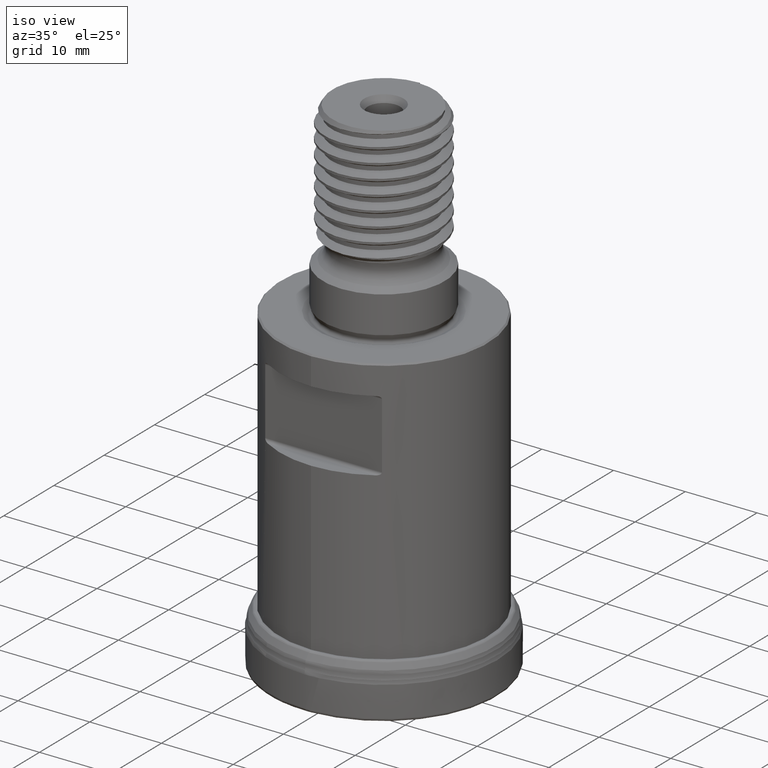
[diagram: clean part render]
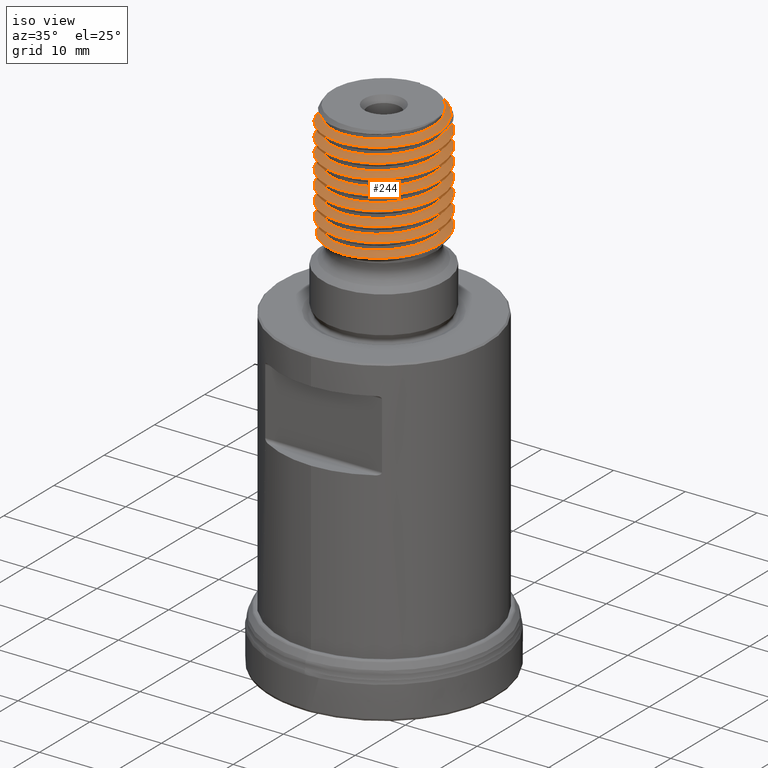
[diagram: same view with one face highlighted and labeled with its STEP entity id]
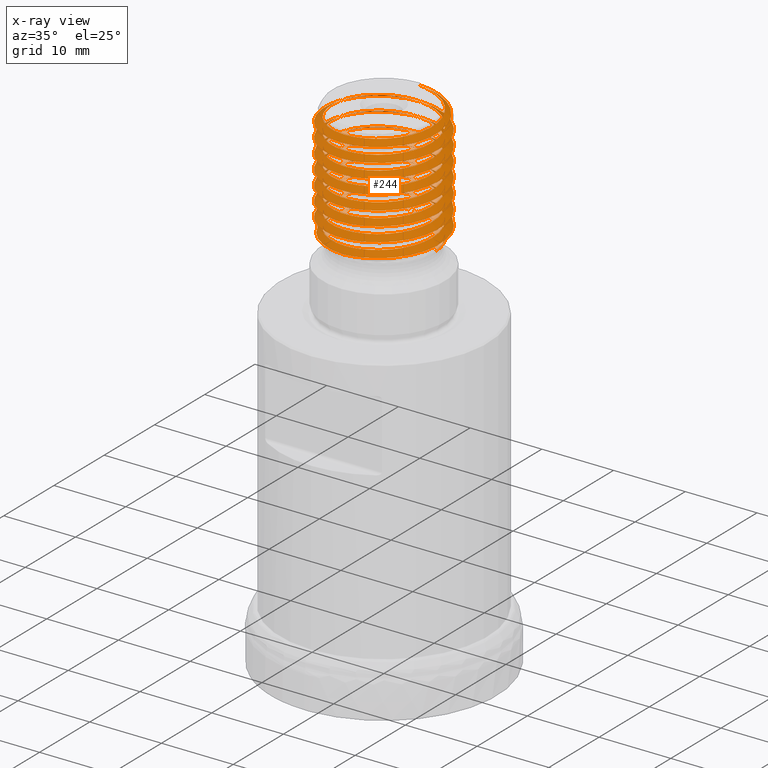
[diagram: x-ray of the same camera — body ghosted, the highlighted face saturated]
A machine part, iso view. The second image highlights one B-rep face of the part: STEP entity #244.
The next image is the same camera in x-ray: the body ghosted, the highlighted face saturated — about 2% of this face is hidden behind the body in this view.
In plain terms, the highlighted face is a freeform B-spline surface patch.
Its self-contained STEP definition (entity closure, byte-faithful):
#153=B_SPLINE_SURFACE_WITH_KNOTS('',1,3,((#2936,#2937,#2938,#2939,#2940,
#2941,#2942,#2943,#2944,#2945,#2946,#2947,#2948,#2949,#2950,#2951,#2952,
#2953,#2954,#2955,#2956,#2957,#2958,#2959,#2960,#2961,#2962,#2963,#2964,
#2965,#2966,#2967,#2968,#2969,#2970,#2971,#2972,#2973,#2974,#2975,#2976,
#2977,#2978,#2979,#2980,#2981,#2982,#2983,#2984,#2985,#2986,#2987,#2988,
#2989,#2990,#2991,#2992,#2993,#2994,#2995,#2996,#2997,#2998,#2999,#3000,
#3001,#3002,#3003,#3004,#3005,#3006,#3007,#3008,#3009,#3010,#3011,#3012,
#3013,#3014,#3015,#3016,#3017,#3018,#3019,#3020,#3021,#3022,#3023,#3024,
#3025,#3026,#3027,#3028,#3029,#3030,#3031,#3032,#3033,#3034,#3035,#3036,
#3037,#3038,#3039,#3040,#3041,#3042,#3043,#3044,#3045,#3046,#3047,#3048,
#3049,#3050,#3051,#3052,#3053,#3054,#3055,#3056,#3057,#3058,#3059,#3060,
#3061,#3062,#3063,#3064,#3065,#3066,#3067,#3068,#3069,#3070,#3071,#3072,
#3073,#3074,#3075,#3076,#3077,#3078,#3079,#3080,#3081,#3082,#3083,#3084,
#3085,#3086,#3087,#3088,#3089,#3090,#3091,#3092,#3093,#3094,#3095,#3096,
#3097,#3098,#3099,#3100,#3101,#3102,#3103,#3104,#3105,#3106,#3107,#3108,
#3109,#3110,#3111,#3112,#3113,#3114,#3115,#3116,#3117,#3118,#3119,#3120,
#3121,#3122,#3123,#3124,#3125,#3126,#3127,#3128,#3129,#3130,#3131,#3132,
#3133,#3134,#3135,#3136,#3137,#3138,#3139,#3140,#3141,#3142,#3143,#3144,
#3145,#3146,#3147,#3148,#3149,#3150,#3151,#3152,#3153,#3154,#3155,#3156,
#3157,#3158,#3159,#3160,#3161,#3162,#3163,#3164,#3165,#3166,#3167,#3168,
#3169,#3170,#3171,#3172,#3173,#3174,#3175,#3176,#3177,#3178,#3179,#3180,
#3181,#3182,#3183,#3184,#3185,#3186,#3187,#3188,#3189,#3190,#3191,#3192,
#3193,#3194,#3195,#3196,#3197,#3198,#3199,#3200,#3201,#3202,#3203,#3204,
#3205,#3206,#3207,#3208,#3209,#3210,#3211,#3212),(#3213,#3214,#3215,#3216,
#3217,#3218,#3219,#3220,#3221,#3222,#3223,#3224,#3225,#3226,#3227,#3228,
#3229,#3230,#3231,#3232,#3233,#3234,#3235,#3236,#3237,#3238,#3239,#3240,
#3241,#3242,#3243,#3244,#3245,#3246,#3247,#3248,#3249,#3250,#3251,#3252,
#3253,#3254,#3255,#3256,#3257,#3258,#3259,#3260,#3261,#3262,#3263,#3264,
#3265,#3266,#3267,#3268,#3269,#3270,#3271,#3272,#3273,#3274,#3275,#3276,
#3277,#3278,#3279,#3280,#3281,#3282,#3283,#3284,#3285,#3286,#3287,#3288,
#3289,#3290,#3291,#3292,#3293,#3294,#3295,#3296,#3297,#3298,#3299,#3300,
#3301,#3302,#3303,#3304,#3305,#3306,#3307,#3308,#3309,#3310,#3311,#3312,
#3313,#3314,#3315,#3316,#3317,#3318,#3319,#3320,#3321,#3322,#3323,#3324,
#3325,#3326,#3327,#3328,#3329,#3330,#3331,#3332,#3333,#3334,#3335,#3336,
#3337,#3338,#3339,#3340,#3341,#3342,#3343,#3344,#3345,#3346,#3347,#3348,
#3349,#3350,#3351,#3352,#3353,#3354,#3355,#3356,#3357,#3358,#3359,#3360,
#3361,#3362,#3363,#3364,#3365,#3366,#3367,#3368,#3369,#3370,#3371,#3372,
#3373,#3374,#3375,#3376,#3377,#3378,#3379,#3380,#3381,#3382,#3383,#3384,
#3385,#3386,#3387,#3388,#3389,#3390,#3391,#3392,#3393,#3394,#3395,#3396,
#3397,#3398,#3399,#3400,#3401,#3402,#3403,#3404,#3405,#3406,#3407,#3408,
#3409,#3410,#3411,#3412,#3413,#3414,#3415,#3416,#3417,#3418,#3419,#3420,
#3421,#3422,#3423,#3424,#3425,#3426,#3427,#3428,#3429,#3430,#3431,#3432,
#3433,#3434,#3435,#3436,#3437,#3438,#3439,#3440,#3441,#3442,#3443,#3444,
#3445,#3446,#3447,#3448,#3449,#3450,#3451,#3452,#3453,#3454,#3455,#3456,
#3457,#3458,#3459,#3460,#3461,#3462,#3463,#3464,#3465,#3466,#3467,#3468,
#3469,#3470,#3471,#3472,#3473,#3474,#3475,#3476,#3477,#3478,#3479,#3480,
#3481,#3482,#3483,#3484,#3485,#3486,#3487,#3488,#3489)),.UNSPECIFIED.,.F.,
 .F.,.F.,(2,2),(4,1,1,1,1,1,1,1,1,1,1,1,1,1,1,1,1,1,1,1,1,1,1,1,1,1,1,1,
1,1,1,1,1,1,1,1,1,1,1,1,1,1,1,1,1,1,1,1,1,1,1,1,1,1,1,1,1,1,1,1,1,1,1,1,
1,1,1,1,1,1,1,1,1,1,1,1,1,1,1,1,1,1,1,1,1,1,1,1,1,1,1,1,1,1,1,1,1,1,1,1,
1,1,1,1,1,1,1,1,1,1,1,1,1,1,1,1,1,1,1,1,1,1,1,1,1,1,1,1,1,1,1,1,1,1,1,1,
1,1,1,1,1,1,1,1,1,1,1,1,1,1,1,1,1,1,1,1,1,1,1,1,1,1,1,1,1,1,1,1,1,1,1,1,
1,1,1,1,1,1,1,1,1,1,1,1,1,1,1,1,1,1,1,1,1,1,1,1,1,1,1,1,1,1,1,1,1,1,1,1,
1,1,1,1,1,1,1,1,1,1,1,1,1,1,1,1,1,1,1,1,1,1,1,1,1,1,1,1,1,1,1,1,1,1,1,1,
1,1,1,1,1,1,1,1,1,1,1,1,1,1,1,1,1,1,1,1,1,1,1,1,1,1,1,1,1,1,4),(0.,1.),
(0.,0.00366185293501716,0.00732370587003432,0.0109855588050515,0.0146474117400686,
0.0183092646750858,0.021971117610103,0.0256329705451201,0.0292948234801373,
0.0329566764151545,0.0366185293501716,0.0402803822851888,0.0439422352202059,
0.0476040881552231,0.0512659410902403,0.0549277940252574,0.0585896469602746,
0.0622514998952917,0.0659133528303089,0.0695752057653261,0.0732370587003432,
0.0768989116353604,0.0805607645703775,0.0842226175053947,0.0878844704404119,
0.091546323375429,0.0952081763104462,0.0988700292454634,0.102531882180481,
0.106193735115498,0.109855588050515,0.113517440985532,0.117179293920549,
0.120841146855566,0.124502999790583,0.128164852725601,0.131826705660618,
0.135488558595635,0.139150411530652,0.142812264465669,0.146474117400686,
0.150135970335704,0.153797823270721,0.157459676205738,0.161121529140755,
0.164783382075772,0.168445235010789,0.172107087945807,0.175768940880824,
0.179430793815841,0.183092646750858,0.186754499685875,0.190416352620892,
0.19407820555591,0.197740058490927,0.201401911425944,0.205063764360961,
0.208725617295978,0.212387470230995,0.216049323166013,0.21971117610103,
0.223373029036047,0.227034881971064,0.230696734906081,0.234358587841098,
0.238020440776115,0.241682293711133,0.24534414664615,0.249005999581167,
0.252667852516184,0.256329705451201,0.259991558386218,0.263653411321236,
0.267315264256253,0.27097711719127,0.274638970126287,0.278300823061304,
0.281962675996321,0.285624528931339,0.289286381866356,0.292948234801373,
0.29661008773639,0.300271940671407,0.303933793606424,0.307595646541442,
0.311257499476459,0.314919352411476,0.318581205346493,0.32224305828151,
0.325904911216527,0.329566764151545,0.333228617086562,0.336890470021579,
0.340552322956596,0.344214175891613,0.34787602882663,0.351537881761648,
0.355199734696665,0.358861587631682,0.362523440566699,0.366185293501716,
0.369847146436733,0.37350899937175,0.377170852306768,0.380832705241785,
0.384494558176802,0.388156411111819,0.391818264046836,0.395480116981853,
0.399141969916871,0.402803822851888,0.406465675786905,0.410127528721922,
0.413789381656939,0.417451234591956,0.421113087526974,0.424774940461991,
0.428436793397008,0.432098646332025,0.435760499267042,0.439422352202059,
0.443084205137077,0.446746058072094,0.450407911007111,0.454069763942128,
0.457731616877145,0.461393469812162,0.465055322747179,0.468717175682197,
0.472379028617214,0.476040881552231,0.479702734487248,0.483364587422265,
0.487026440357282,0.4906882932923,0.494350146227317,0.498011999162334,0.501673852097351,
0.505335705032368,0.508997557967385,0.512659410902403,0.51632126383742,
0.519983116772437,0.523644969707454,0.527306822642471,0.530968675577488,
0.534630528512506,0.538292381447523,0.54195423438254,0.545616087317557,
0.549277940252574,0.552939793187591,0.556601646122609,0.560263499057626,
0.563925351992643,0.56758720492766,0.571249057862677,0.574910910797694,
0.578572763732711,0.582234616667729,0.585896469602746,0.589558322537763,
0.59322017547278,0.596882028407797,0.600543881342814,0.604205734277832,
0.607867587212849,0.611529440147866,0.615191293082883,0.6188531460179,0.622514998952917,
0.626176851887935,0.629838704822952,0.633500557757969,0.637162410692986,
0.640824263628003,0.64448611656302,0.648147969498038,0.651809822433055,
0.655471675368072,0.659133528303089,0.662795381238106,0.666457234173123,
0.670119087108141,0.673780940043158,0.677442792978175,0.681104645913192,
0.684766498848209,0.688428351783226,0.692090204718243,0.695752057653261,
0.699413910588278,0.703075763523295,0.706737616458312,0.710399469393329,
0.714061322328347,0.717723175263364,0.721385028198381,0.725046881133398,
0.728708734068415,0.732370587003432,0.736032439938449,0.739694292873467,
0.743356145808484,0.747017998743501,0.750679851678518,0.754341704613535,
0.758003557548552,0.76166541048357,0.765327263418587,0.768989116353604,
0.772650969288621,0.776312822223638,0.779974675158655,0.783636528093673,
0.78729838102869,0.790960233963707,0.794622086898724,0.798283939833741,
0.801945792768758,0.805607645703776,0.809269498638793,0.81293135157381,
0.816593204508827,0.820255057443844,0.823916910378861,0.827578763313878,
0.831240616248896,0.834902469183913,0.83856432211893,0.842226175053947,
0.845888027988964,0.849549880923981,0.853211733858999,0.856873586794016,
0.860535439729033,0.86419729266405,0.867859145599067,0.871520998534084,
0.875182851469102,0.878844704404119,0.882506557339136,0.886168410274153,
0.88983026320917,0.893492116144187,0.897153969079205,0.900815822014222,
0.904477674949239,0.908139527884256,0.911801380819273,0.91546323375429,
0.919125086689307,0.922786939624325,0.926448792559342,0.930110645494359,
0.933772498429376,0.937434351364393,0.94109620429941,0.944758057234428,
0.948419910169445,0.952081763104462,0.955743616039479,0.959405468974496,
0.963067321909514,0.966729174844531,0.970391027779548,0.974052880714565,
0.977714733649582,0.981376586584599,0.985038439519616,0.988700292454634,
0.992362145389651,0.996023998324668,0.999685851259685,1.),.UNSPECIFIED.);
#172=FACE_OUTER_BOUND('',#478,.T.);
#244=ADVANCED_FACE('',(#172),#153,.F.);
#478=EDGE_LOOP('',(#651,#652,#653,#654,#655,#656));
#651=ORIENTED_EDGE('',*,*,#826,.T.);
#652=ORIENTED_EDGE('',*,*,#840,.T.);
#653=ORIENTED_EDGE('',*,*,#842,.F.);
#654=ORIENTED_EDGE('',*,*,#816,.F.);
#655=ORIENTED_EDGE('',*,*,#813,.F.);
#656=ORIENTED_EDGE('',*,*,#808,.F.);
#732=VERTEX_POINT('',#1729);
#733=VERTEX_POINT('',#1860);
#735=VERTEX_POINT('',#1995);
#738=VERTEX_POINT('',#2008);
#746=VERTEX_POINT('',#2074);
#753=VERTEX_POINT('',#2117);
#808=EDGE_CURVE('',#732,#733,#948,.T.);
#813=EDGE_CURVE('',#733,#735,#951,.T.);
#816=EDGE_CURVE('',#735,#738,#953,.T.);
#826=EDGE_CURVE('',#732,#746,#955,.T.);
#840=EDGE_CURVE('',#746,#753,#956,.T.);
#842=EDGE_CURVE('',#738,#753,#958,.T.);
#948=B_SPLINE_CURVE_WITH_KNOTS('',3,(#1730,#1731,#1732,#1733,#1734,#1735,
#1736,#1737,#1738,#1739,#1740,#1741,#1742,#1743,#1744,#1745,#1746,#1747,
#1748,#1749,#1750,#1751,#1752,#1753,#1754,#1755,#1756,#1757,#1758,#1759,
#1760,#1761,#1762,#1763,#1764,#1765,#1766,#1767,#1768,#1769,#1770,#1771,
#1772,#1773,#1774,#1775,#1776,#1777,#1778,#1779,#1780,#1781,#1782,#1783,
#1784,#1785,#1786,#1787,#1788,#1789,#1790,#1791,#1792,#1793,#1794,#1795,
#1796,#1797,#1798,#1799,#1800,#1801,#1802,#1803,#1804,#1805,#1806,#1807,
#1808,#1809,#1810,#1811,#1812,#1813,#1814,#1815,#1816,#1817,#1818,#1819,
#1820,#1821,#1822,#1823,#1824,#1825,#1826,#1827,#1828,#1829,#1830,#1831,
#1832,#1833,#1834,#1835,#1836,#1837,#1838,#1839,#1840,#1841,#1842,#1843,
#1844,#1845,#1846,#1847,#1848,#1849,#1850,#1851,#1852,#1853,#1854,#1855,
#1856,#1857,#1858,#1859),.UNSPECIFIED.,.F.,.F.,(4,2,2,2,2,2,2,2,2,2,2,2,
2,2,2,2,2,2,2,2,2,2,2,2,2,2,2,2,2,2,2,2,2,2,2,2,2,2,2,2,2,2,2,2,2,2,2,2,
2,2,2,2,2,2,2,2,2,2,2,2,2,2,2,2,4),(0.,0.015625,0.03125,0.046875,0.0625,
0.078125,0.09375,0.109375,0.125,0.140625,0.15625,0.171875,0.1875,0.203125,
0.21875,0.234375,0.25,0.265625,0.28125,0.296875,0.3125,0.328125,0.34375,
0.359375,0.375,0.390625,0.40625,0.421875,0.4375,0.453125,0.46875,0.484375,
0.5,0.515625,0.53125,0.546875,0.5625,0.578125,0.59375,0.609375,0.625,0.640625,
0.65625,0.671875,0.6875,0.703125,0.71875,0.734375,0.75,0.765625,0.78125,
0.796875,0.8125,0.828125,0.84375,0.859375,0.875,0.890625,0.90625,0.921875,
0.9375,0.953125,0.96875,0.984375,1.),.UNSPECIFIED.);
#951=B_SPLINE_CURVE_WITH_KNOTS('',3,(#2001,#2002,#2003,#2004),
 .UNSPECIFIED.,.F.,.F.,(4,4),(0.,1.),.UNSPECIFIED.);
#953=B_SPLINE_CURVE_WITH_KNOTS('',3,(#2023,#2024,#2025,#2026,#2027,#2028,
#2029,#2030,#2031,#2032),.UNSPECIFIED.,.F.,.F.,(4,2,2,2,4),(0.,0.25,0.5,
0.75,1.),.UNSPECIFIED.);
#955=B_SPLINE_CURVE_WITH_KNOTS('',3,(#2075,#2076,#2077,#2078,#2079,#2080),
 .UNSPECIFIED.,.F.,.F.,(4,2,4),(0.,0.5,1.),.UNSPECIFIED.);
#956=B_SPLINE_CURVE_WITH_KNOTS('',1,(#2118,#2119),.UNSPECIFIED.,.F.,.F.,
(2,2),(0.,1.),.UNSPECIFIED.);
#958=B_SPLINE_CURVE_WITH_KNOTS('',3,(#2251,#2252,#2253,#2254,#2255,#2256,
#2257,#2258,#2259,#2260,#2261,#2262,#2263,#2264,#2265,#2266,#2267,#2268,
#2269,#2270,#2271,#2272,#2273,#2274,#2275,#2276,#2277,#2278,#2279,#2280,
#2281,#2282,#2283,#2284,#2285,#2286,#2287,#2288,#2289,#2290,#2291,#2292,
#2293,#2294,#2295,#2296,#2297,#2298,#2299,#2300,#2301,#2302,#2303,#2304,
#2305,#2306,#2307,#2308,#2309,#2310,#2311,#2312,#2313,#2314,#2315,#2316,
#2317,#2318,#2319,#2320,#2321,#2322,#2323,#2324,#2325,#2326,#2327,#2328,
#2329,#2330,#2331,#2332,#2333,#2334,#2335,#2336,#2337,#2338,#2339,#2340,
#2341,#2342,#2343,#2344,#2345,#2346,#2347,#2348,#2349,#2350,#2351,#2352,
#2353,#2354,#2355,#2356,#2357,#2358,#2359,#2360,#2361,#2362,#2363,#2364,
#2365,#2366,#2367,#2368,#2369,#2370,#2371,#2372,#2373,#2374,#2375,#2376,
#2377,#2378,#2379,#2380),.UNSPECIFIED.,.F.,.F.,(4,2,2,2,2,2,2,2,2,2,2,2,
2,2,2,2,2,2,2,2,2,2,2,2,2,2,2,2,2,2,2,2,2,2,2,2,2,2,2,2,2,2,2,2,2,2,2,2,
2,2,2,2,2,2,2,2,2,2,2,2,2,2,2,2,4),(0.,0.015625,0.03125,0.046875,0.0625,
0.078125,0.09375,0.109375,0.125,0.140625,0.15625,0.171875,0.1875,0.203125,
0.21875,0.234375,0.25,0.265625,0.28125,0.296875,0.3125,0.328125,0.34375,
0.359375,0.375,0.390625,0.40625,0.421875,0.4375,0.453125,0.46875,0.484375,
0.5,0.515625,0.53125,0.546875,0.5625,0.578125,0.59375,0.609375,0.625,0.640625,
0.65625,0.671875,0.6875,0.703125,0.71875,0.734375,0.75,0.765625,0.78125,
0.796875,0.8125,0.828125,0.84375,0.859375,0.875,0.890625,0.90625,0.921875,
0.9375,0.953125,0.96875,0.984375,1.),.UNSPECIFIED.);
#1729=CARTESIAN_POINT('',(7.17785428981752,-3.53247898707816,68.95));
#1730=CARTESIAN_POINT('',(7.17785428981752,-3.53247898707816,68.95));
#1731=CARTESIAN_POINT('',(6.34007718844731,-5.2348081397718,68.8739797371343));
#1732=CARTESIAN_POINT('',(4.91115504157553,-6.59147184015877,68.8006469235239));
#1733=CARTESIAN_POINT('',(1.44469869942252,-8.09195838656408,68.650736234375));
#1734=CARTESIAN_POINT('',(-0.536329298273665,-8.20080036521316,68.5755235494001));
#1735=CARTESIAN_POINT('',(-4.13570201897725,-7.10188316972999,68.4268470175795));
#1736=CARTESIAN_POINT('',(-5.7241355399362,-5.89535623547979,68.351260610235));
#1737=CARTESIAN_POINT('',(-7.74848237950252,-2.73531965907282,68.2022088530945));
#1738=CARTESIAN_POINT('',(-8.17920716679711,-0.779697539875801,68.127415829743));
#1739=CARTESIAN_POINT('',(-7.67538936193279,2.93185202112984,67.9775561872409));
#1740=CARTESIAN_POINT('',(-6.73495943325185,4.70534365618853,67.9033183611353));
#1741=CARTESIAN_POINT('',(-3.94993630500318,7.20402253444563,67.7534384567439));
#1742=CARTESIAN_POINT('',(-2.08303171233364,7.94730494357943,67.6782690056374));
#1743=CARTESIAN_POINT('',(1.65658947135603,8.04701114105248,67.5300288283565));
#1744=CARTESIAN_POINT('',(3.55978101438101,7.40481622640842,67.4536391323288));
#1745=CARTESIAN_POINT('',(6.47539764895895,5.05693281595533,67.3057496439159));
#1746=CARTESIAN_POINT('',(7.50800864094679,3.33823041070404,67.2297871145692));
#1747=CARTESIAN_POINT('',(8.20945597213035,-0.344686334416919,67.080781024614));
#1748=CARTESIAN_POINT('',(7.88438309518603,-2.31673795570873,67.0062467365791));
#1749=CARTESIAN_POINT('',(6.02852382254917,-5.58459238154702,66.8558331470798));
#1750=CARTESIAN_POINT('',(4.51080736856814,-6.87070681114114,66.7823230095043));
#1751=CARTESIAN_POINT('',(0.968370690313577,-8.16187805637469,66.631427785664));
#1752=CARTESIAN_POINT('',(-1.00865026083793,-8.15883369072999,66.5574527863746));
#1753=CARTESIAN_POINT('',(-4.5583378550003,-6.8414544171068,66.4075767177805));
#1754=CARTESIAN_POINT('',(-6.05565731238209,-5.55970147028307,66.3327583243982));
#1755=CARTESIAN_POINT('',(-7.90479548782551,-2.25731571104444,66.1831206962649));
#1756=CARTESIAN_POINT('',(-8.21339470726958,-0.303415368075011,66.108490505132));
#1757=CARTESIAN_POINT('',(-7.48510717170801,3.39486143031406,65.9584744464109));
#1758=CARTESIAN_POINT('',(-6.44845520601448,5.09377770606719,65.8845002616188));
#1759=CARTESIAN_POINT('',(-3.50717733718275,7.43161173557626,65.7339909234507));
#1760=CARTESIAN_POINT('',(-1.60840102636898,8.05765793429136,65.6600649740178));
#1761=CARTESIAN_POINT('',(2.13804049033204,7.93357347664812,65.5101617419742));
#1762=CARTESIAN_POINT('',(3.99603813592879,7.178747025995,65.4348068240191));
#1763=CARTESIAN_POINT('',(6.76589634015174,4.66104884777564,65.2867888502045));
#1764=CARTESIAN_POINT('',(7.69450579821117,2.87978569127041,65.210303080209));
#1765=CARTESIAN_POINT('',(8.17368886502368,-0.830298406681851,65.0623652185458));
#1766=CARTESIAN_POINT('',(7.7277971654927,-2.78953931655639,64.9864924759083));
#1767=CARTESIAN_POINT('',(5.68921672487814,-5.92732584619548,64.837467172514));
#1768=CARTESIAN_POINT('',(4.08256035424952,-7.13028182983485,64.7628437540409));
#1769=CARTESIAN_POINT('',(0.492952634753689,-8.2015373997106,64.6127634924421));
#1770=CARTESIAN_POINT('',(-1.50523351520181,-8.0781523168968,64.5386103741153));
#1771=CARTESIAN_POINT('',(-4.94069108418323,-6.56596104168644,64.3887182815122));
#1772=CARTESIAN_POINT('',(-6.37760194325095,-5.18351815108311,64.3136711013733));
#1773=CARTESIAN_POINT('',(-8.0197495491286,-1.79618599772361,64.1648865075474));
#1774=CARTESIAN_POINT('',(-8.21815825438707,0.176867908876749,64.0895460355273));
#1775=CARTESIAN_POINT('',(-7.2707712515238,3.83474806986802,63.9399578629742));
#1776=CARTESIAN_POINT('',(-6.15058061238584,5.45593734022182,63.8659564125535));
#1777=CARTESIAN_POINT('',(-3.04681192860199,7.63634933732165,63.7146788635947));
#1778=CARTESIAN_POINT('',(-1.14066601241396,8.14022864361545,63.6417479442689));
#1779=CARTESIAN_POINT('',(2.61912470583348,7.79131741732469,63.4903866053505));
#1780=CARTESIAN_POINT('',(4.40990099632075,6.93481029469722,63.4168902082158));
#1781=CARTESIAN_POINT('',(7.03828280514819,4.24280517765602,63.2668521043413));
#1782=CARTESIAN_POINT('',(7.8523077807852,2.42093850855924,63.1915629137087));
#1783=CARTESIAN_POINT('',(8.10993345586744,-1.32236911934843,63.0433500783727));
#1784=CARTESIAN_POINT('',(7.54830143498732,-3.24496276888463,62.9671494997853));
#1785=CARTESIAN_POINT('',(5.32388764992997,-6.25802350713078,62.8188214191727));
#1786=CARTESIAN_POINT('',(3.6470282248208,-7.36198516090368,62.7433280192537));
#1787=CARTESIAN_POINT('',(0.0042908577747187,-8.21581535640525,62.5940226028171));
#1788=CARTESIAN_POINT('',(-1.99024298977015,-7.97104996156333,62.5195056388478));
#1789=CARTESIAN_POINT('',(-5.31814095663092,-6.26227446008816,62.369575580136));
#1790=CARTESIAN_POINT('',(-6.67890747960849,-4.7849873151363,62.2948874719853));
#1791=CARTESIAN_POINT('',(-8.10853812540945,-1.32495969597839,62.1458845417695));
#1792=CARTESIAN_POINT('',(-8.18873666845225,0.678070179826916,62.0700308174191));
#1793=CARTESIAN_POINT('',(-7.0347633160123,4.24585591862388,61.9219091512394));
#1794=CARTESIAN_POINT('',(-5.8028843747706,5.81885379452676,61.8460394869127));
#1795=CARTESIAN_POINT('',(-2.60468604593664,7.79410913133367,61.6969694075025));
#1796=CARTESIAN_POINT('',(-0.656669797708581,8.19298360891644,61.6225300557878));
#1797=CARTESIAN_POINT('',(3.07169511627635,7.6237054476049,61.4718222245413));
#1798=CARTESIAN_POINT('',(4.80329336432318,6.67194931266593,61.398877391508));
#1799=CARTESIAN_POINT('',(7.28474374011128,3.81038625541347,61.2470557414158));
#1800=CARTESIAN_POINT('',(7.98188004686492,1.96676408492957,61.1738207707064));
#1801=CARTESIAN_POINT('',(8.01741424817889,-1.81649079860229,61.0235184534199));
#1802=CARTESIAN_POINT('',(7.34923259677358,-3.67949580503087,60.9485627910075));
#1803=CARTESIAN_POINT('',(4.93472132213785,-6.57255160600177,60.7997494573822));
#1804=CARTESIAN_POINT('',(3.20877806708672,-7.56514544861671,60.724198456611));
#1805=CARTESIAN_POINT('',(-0.49314546217826,-8.20271234992885,60.5751535750211));
#1806=CARTESIAN_POINT('',(-2.45982517006071,-7.83970705607987,60.500308230729));
#1807=CARTESIAN_POINT('',(-5.68570645866873,-5.93165142757607,60.3504808332296));
#1808=CARTESIAN_POINT('',(-6.95307022476377,-4.37685238826646,60.2762416395743));
#1809=CARTESIAN_POINT('',(-8.17305866945687,-0.838531075623595,60.1263012585489));
#1810=CARTESIAN_POINT('',(-8.13200436521649,1.17003702035244,60.0512473359256));
#1811=CARTESIAN_POINT('',(-6.77027359639439,4.65423216598195,59.9028736195862));
#1812=CARTESIAN_POINT('',(-5.43822453610389,6.15845747591777,59.8265461236118));
#1813=CARTESIAN_POINT('',(-2.14281305536285,7.93153432808162,59.6786936285104));
#1814=CARTESIAN_POINT('',(-0.156188910558269,8.21491485333494,59.6026463422813));
#1815=CARTESIAN_POINT('',(3.50729707004337,7.43021455180064,59.4537766346453));
#1816=CARTESIAN_POINT('',(5.20016321961463,6.36254415974548,59.3790976130461));
#1817=CARTESIAN_POINT('',(7.48746804278818,3.38548194553887,59.2288432300909));
#1818=CARTESIAN_POINT('',(8.08354958587456,1.48347032186702,59.1552178148082));
#1819=CARTESIAN_POINT('',(7.89674861562399,-2.27723942632151,59.0044291387225));
#1820=CARTESIAN_POINT('',(7.12347185421943,-4.10219792897982,58.9303540293582));
#1821=CARTESIAN_POINT('',(4.53459919541926,-6.85633205462549,58.7806470643686));
#1822=CARTESIAN_POINT('',(2.77303032863299,-7.73979363478406,58.7058352741042));
#1823=CARTESIAN_POINT('',(-0.995111948542528,-8.16111848476847,58.5560207379205));
#1824=CARTESIAN_POINT('',(-2.91012004658515,-7.68722266607356,58.481472270769));
#1825=CARTESIAN_POINT('',(-6.0391801836277,-5.57588501612168,58.3313942533046));
#1826=CARTESIAN_POINT('',(-7.19901328564623,-3.96373244382962,58.2574487589056));
#1827=CARTESIAN_POINT('',(-8.21100745628956,-0.34106264224628,58.106873004289));
#1828=CARTESIAN_POINT('',(-8.04985621848186,1.64865423600405,58.0330610451866));
#1829=CARTESIAN_POINT('',(-6.47812096089764,5.05491787708806,57.8829703229955));
#1830=CARTESIAN_POINT('',(-5.06171680180388,6.47185296967772,57.8078092240491));
#1831=CARTESIAN_POINT('',(-1.66383363903752,8.04596268102195,57.6596258779218));
#1832=CARTESIAN_POINT('',(0.337399901966465,8.20887347688671,57.5832335466481));
#1833=CARTESIAN_POINT('',(3.94242733038382,7.20810024888834,57.4352830372748));
#1834=CARTESIAN_POINT('',(5.57425328748463,6.03545099506147,57.3593791611821));
#1835=CARTESIAN_POINT('',(7.67244565510616,2.93811948297958,57.2104200983857));
#1836=CARTESIAN_POINT('',(8.15637128221155,0.989003143136548,57.1357301920595));
#1837=CARTESIAN_POINT('',(7.74832257307084,-2.73276728135776,56.9857171054016));
#1838=CARTESIAN_POINT('',(6.85676052214851,-4.5278115799708,56.9115522172533));
#1839=CARTESIAN_POINT('',(4.13050774610958,-7.10317874765517,56.7616528020122));
#1840=CARTESIAN_POINT('',(2.29509885616169,-7.89093020766924,56.6865650977299));
#1841=CARTESIAN_POINT('',(-1.45969720359589,-8.08724566064834,56.537929870233));
#1842=CARTESIAN_POINT('',(-3.35896851758377,-7.50172405037119,56.4623444413537));
#1843=CARTESIAN_POINT('',(-6.35659033525337,-5.21078617291092,56.3131033846421));
#1844=CARTESIAN_POINT('',(-7.41756030429151,-3.54530459295805,56.238764585915));
#1845=CARTESIAN_POINT('',(-8.21975915347883,0.157939809585593,56.0877966546432));
#1846=CARTESIAN_POINT('',(-7.94513376329672,2.10967344884807,56.0147662268967));
#1847=CARTESIAN_POINT('',(-6.15970692393824,5.4437012398404,55.8632286947811));
#1848=CARTESIAN_POINT('',(-4.6779565350166,6.75754846364561,55.7899728796415));
#1849=CARTESIAN_POINT('',(-1.17165723822683,8.13479919224408,55.6396112298501));
#1850=CARTESIAN_POINT('',(0.819770947422058,8.17644038776161,55.5645968756768));
#1851=CARTESIAN_POINT('',(4.37217811612003,6.95774822351153,55.4161815205021));
#1852=CARTESIAN_POINT('',(5.92322700936654,5.69440186798799,55.340111883147));
#1853=CARTESIAN_POINT('',(7.83587775158045,2.47181121870597,55.1917158671288));
#1854=CARTESIAN_POINT('',(8.20076087419135,0.499063584544895,55.1162514798614));
#1855=CARTESIAN_POINT('',(7.57131234886976,-3.19010543602217,54.9669366483902));
#1856=CARTESIAN_POINT('',(6.57049615505957,-4.93223193374856,54.8924372768394));
#1857=CARTESIAN_POINT('',(3.70266035872544,-7.33407375473305,54.742478197992));
#1858=CARTESIAN_POINT('',(1.82704044980841,-8.01634453837144,54.6685092781444));
#1859=CARTESIAN_POINT('',(-0.0702152660447677,-7.99969185759133,54.5928856678368));
#1860=CARTESIAN_POINT('',(-0.0702152660405645,-7.99969185759142,54.5928856678368));
#1995=CARTESIAN_POINT('',(-6.14141757892701,-4.72710166182672,54.4485481005394));
#2001=CARTESIAN_POINT('',(-0.0702152660405645,-7.99969185759142,54.5928856678368));
#2002=CARTESIAN_POINT('',(-2.46761029052267,-7.89586451583266,54.5450916735642));
#2003=CARTESIAN_POINT('',(-4.74664410044106,-6.68006465410043,54.4981606097782));
#2004=CARTESIAN_POINT('',(-6.14141757892702,-4.72710166182672,54.4485481005393));
#2008=CARTESIAN_POINT('',(6.99522109408452,0.258615244871098,53.6847431295228));
#2023=CARTESIAN_POINT('',(-6.14141757892701,-4.72710166182672,54.4485481005394));
#2024=CARTESIAN_POINT('',(-7.48967741089812,-2.83926711634418,54.4005900956004));
#2025=CARTESIAN_POINT('',(-7.92016833345697,-0.366591212201138,54.3490893545753));
#2026=CARTESIAN_POINT('',(-6.66569800243494,4.03712535764277,54.2384988795431));
#2027=CARTESIAN_POINT('',(-4.95154903117964,5.93404357849523,54.1778269948948));
#2028=CARTESIAN_POINT('',(-0.676500618094867,7.57974573911476,54.0505417751433));
#2029=CARTESIAN_POINT('',(1.86250784262235,7.32634077986487,53.9827887785203));
#2030=CARTESIAN_POINT('',(5.71459845135312,4.7908319399697,53.8384282412162));
#2031=CARTESIAN_POINT('',(6.95336115975844,2.57801962008233,53.7640137608194));
#2032=CARTESIAN_POINT('',(6.99522109408453,0.258615244871098,53.6847431295228));
#2074=CARTESIAN_POINT('',(8.19064291333113E-14,7.44082284660781,69.9185232401071));
#2075=CARTESIAN_POINT('',(7.17785428981754,-3.53247898707813,68.95));
#2076=CARTESIAN_POINT('',(8.25898530909569,-1.12867561997314,69.108305970787));
#2077=CARTESIAN_POINT('',(8.05853277709947,1.75358090789436,69.2637358200674));
#2078=CARTESIAN_POINT('',(5.2107905964173,6.16338893266268,69.5860417212104));
#2079=CARTESIAN_POINT('',(2.63480971981332,7.53843615916868,69.7494520232566));
#2080=CARTESIAN_POINT('',(8.01512932834456E-14,7.44082284660781,69.9185232401071));
#2117=CARTESIAN_POINT('',(8.22045752882812E-14,7.00000000000008,70.173032429261));
#2118=CARTESIAN_POINT('',(8.1521471817495E-14,8.01000000000008,69.5899086573795));
#2119=CARTESIAN_POINT('',(8.2427377170805E-14,6.67057713659409,70.3632248081257));
#2251=CARTESIAN_POINT('',(6.99522109408425,0.258615244871088,53.6847431295229));
#2252=CARTESIAN_POINT('',(6.92572242930802,2.13846778835044,53.7695730139948));
#2253=CARTESIAN_POINT('',(6.06472044324267,3.98089988709795,53.8567405733409));
#2254=CARTESIAN_POINT('',(3.21128253153281,6.50507974343545,54.0279959313825));
#2255=CARTESIAN_POINT('',(1.27792928435417,7.1346224343733,54.1155122785163));
#2256=CARTESIAN_POINT('',(-2.46924920741307,6.81459821915879,54.2843451068829));
#2257=CARTESIAN_POINT('',(-4.27414430919489,5.8569064260152,54.3724557580976));
#2258=CARTESIAN_POINT('',(-6.6410592045318,2.90998197603077,54.5421859610927));
#2259=CARTESIAN_POINT('',(-7.18893277846953,0.941698582057799,54.6300851518052));
#2260=CARTESIAN_POINT('',(-6.68686845150141,-2.80238131329733,54.8000212006104));
#2261=CARTESIAN_POINT('',(-5.63732303515101,-4.55606364861955,54.8876066249393));
#2262=CARTESIAN_POINT('',(-2.594870758108,-6.7678484558708,55.05731835861));
#2263=CARTESIAN_POINT('',(-0.615965414644235,-7.22881397661019,55.143717001805));
#2264=CARTESIAN_POINT('',(3.1350205176248,-6.54269143812733,55.3164743049107));
#2265=CARTESIAN_POINT('',(4.82263773790638,-5.41102664973121,55.4021404650581));
#2266=CARTESIAN_POINT('',(6.88510091819225,-2.26548659265267,55.5733887550785));
#2267=CARTESIAN_POINT('',(7.24588152494474,-0.253721137332952,55.6589083641066));
#2268=CARTESIAN_POINT('',(6.39010405470428,3.42545524844762,55.8316299452848));
#2269=CARTESIAN_POINT('',(5.1808934076301,5.07245853987793,55.9164315322807));
#2270=CARTESIAN_POINT('',(1.92413074250489,6.99065183124957,56.0898701448494));
#2271=CARTESIAN_POINT('',(-0.103048989918367,7.24740860507399,56.1742393622579));
#2272=CARTESIAN_POINT('',(-3.72067873856505,6.22029744526844,56.347192606031));
#2273=CARTESIAN_POINT('',(-5.30614581086593,4.94698089230252,56.4307778175215));
#2274=CARTESIAN_POINT('',(-7.08114796320006,1.57643485061809,56.6061437551133));
#2275=CARTESIAN_POINT('',(-7.2342529445692,-0.451689748096656,56.6897103646169));
#2276=CARTESIAN_POINT('',(-6.03339513018986,-4.01703653176626,56.8628050201377));
#2277=CARTESIAN_POINT('',(-4.67305761549565,-5.54307506004343,56.9471530635474));
#2278=CARTESIAN_POINT('',(-1.25264842077856,-7.14100976983918,57.1204674039748));
#2279=CARTESIAN_POINT('',(0.789319990891595,-7.20784304106902,57.2052465346004));
#2280=CARTESIAN_POINT('',(4.31144007341891,-5.82988094612801,57.3781354753607));
#2281=CARTESIAN_POINT('',(5.76433420277373,-4.39398679567564,57.4637850269804));
#2282=CARTESIAN_POINT('',(7.19013752784086,-0.914653536905725,57.6346280947087));
#2283=CARTESIAN_POINT('',(7.16707131468788,1.11997504539768,57.7208338615026));
#2284=CARTESIAN_POINT('',(5.6136052866242,4.59441955181724,57.892781368583));
#2285=CARTESIAN_POINT('',(4.11238445574228,5.96898941337018,57.9797754621502));
#2286=CARTESIAN_POINT('',(0.565402621516545,7.2264002383163,58.1491587504475));
#2287=CARTESIAN_POINT('',(-1.47510067609843,7.09815628294545,58.2370861336184));
#2288=CARTESIAN_POINT('',(-4.84250962083672,5.39535403785953,58.4066125888615));
#2289=CARTESIAN_POINT('',(-6.15639508953011,3.83142499997223,58.4945744688142));
#2290=CARTESIAN_POINT('',(-7.2483034645543,0.207641312200036,58.6645670184394));
#2291=CARTESIAN_POINT('',(-7.01555404514274,-1.82098578029578,58.7524488724735));
#2292=CARTESIAN_POINT('',(-5.15939731306674,-5.09063916795107,58.9215350932944));
#2293=CARTESIAN_POINT('',(-3.54343615648599,-6.32919989146007,59.0088007805188));
#2294=CARTESIAN_POINT('',(0.145333127595472,-7.25214377568275,59.1802506783397));
#2295=CARTESIAN_POINT('',(2.15521860325042,-6.92080301454596,59.2670325152635));
#2296=CARTESIAN_POINT('',(5.33538864979264,-4.90674123524054,59.4374057973465));
#2297=CARTESIAN_POINT('',(6.49423120583829,-3.22196405520096,59.5239220353625));
#2298=CARTESIAN_POINT('',(7.23389353933397,0.47631459086791,59.6954030025059));
#2299=CARTESIAN_POINT('',(6.81606333070193,2.47528618791959,59.7809770290904));
#2300=CARTESIAN_POINT('',(4.63861566969253,5.5739578137198,59.9540059132551));
#2301=CARTESIAN_POINT('',(2.89949440379947,6.64274408151451,60.0388636398681));
#2302=CARTESIAN_POINT('',(-0.818042227627674,7.2016611725336,60.2112643597703));
#2303=CARTESIAN_POINT('',(-2.79127870830973,6.69454081991805,60.2953806629006));
#2304=CARTESIAN_POINT('',(-5.79244604748853,4.36528148049424,60.4700745925601));
#2305=CARTESIAN_POINT('',(-6.77448705256109,2.5789183335959,60.5538837486503));
#2306=CARTESIAN_POINT('',(-7.1541600892899,-1.16725661852301,60.7272836726705));
#2307=CARTESIAN_POINT('',(-6.54394200740868,-3.11921482001926,60.8113408095021));
#2308=CARTESIAN_POINT('',(-4.09293879884337,-5.9833544169369,60.9849355683202));
#2309=CARTESIAN_POINT('',(-2.2635723490421,-6.88964119383982,61.0689202089258));
#2310=CARTESIAN_POINT('',(1.52103546424565,-7.09065347310881,61.2431458473968));
#2311=CARTESIAN_POINT('',(3.43464070989456,-6.38247808816745,61.3275365625352));
#2312=CARTESIAN_POINT('',(6.169708371886,-3.80361432822563,61.4997432123616));
#2313=CARTESIAN_POINT('',(6.9892487559341,-1.93717118690278,61.5847776541892));
#2314=CARTESIAN_POINT('',(7.01053119835336,1.85867767421021,61.7577139700561));
#2315=CARTESIAN_POINT('',(6.21229560031628,3.73559018239309,61.8437696199053));
#2316=CARTESIAN_POINT('',(3.49907179335584,6.34852323154308,62.0142535064185));
#2317=CARTESIAN_POINT('',(1.58675950049378,7.07334501082458,62.1015232599465));
#2318=CARTESIAN_POINT('',(-2.17817353850831,6.91415760528396,62.2713094801234));
#2319=CARTESIAN_POINT('',(-4.02016531640549,6.03614367009999,62.358910186281));
#2320=CARTESIAN_POINT('',(-6.5174212282879,3.18119161799148,62.5293378908298));
#2321=CARTESIAN_POINT('',(-7.14117659034498,1.23957830355197,62.6172072761537));
#2322=CARTESIAN_POINT('',(-6.80158207997751,-2.50428406424993,62.7859572033102));
#2323=CARTESIAN_POINT('',(-5.83863104453992,-4.30198341382698,62.8738542436822));
#2324=CARTESIAN_POINT('',(-2.86846883464012,-6.660972925317,63.0442239583133));
#2325=CARTESIAN_POINT('',(-0.898549718229202,-7.19323861920379,63.1319337860531));
#2326=CARTESIAN_POINT('',(2.83360867775331,-6.67238602677456,63.3015505330186));
#2327=CARTESIAN_POINT('',(4.58427657570213,-5.61530449916354,63.3890887097398));
#2328=CARTESIAN_POINT('',(6.78305879780419,-2.55682414068501,63.5591817146404));
#2329=CARTESIAN_POINT('',(7.23055695512131,-0.566958459666894,63.645792519571));
#2330=CARTESIAN_POINT('',(6.52660702795294,3.16319403118378,63.8179572202269));
#2331=CARTESIAN_POINT('',(5.38462687166767,4.85166486525415,63.9037808890622));
#2332=CARTESIAN_POINT('',(2.23013986814385,6.89632762275273,64.0751058899024));
#2333=CARTESIAN_POINT('',(0.220356854483245,7.2486087383932,64.1602894339128));
#2334=CARTESIAN_POINT('',(-3.4662974375129,6.3699032850051,64.3337363216289));
#2335=CARTESIAN_POINT('',(-5.10273462339303,5.14925959122799,64.4183330530858));
#2336=CARTESIAN_POINT('',(-6.99840272645934,1.890802542021,64.5914238052658));
#2337=CARTESIAN_POINT('',(-7.24742174702355,-0.139082594921124,64.6758033949624));
#2338=CARTESIAN_POINT('',(-6.19988341664699,-3.75578374875673,64.8490327602706));
#2339=CARTESIAN_POINT('',(-4.91246787727283,-5.33627841792498,64.9328274212523));
#2340=CARTESIAN_POINT('',(-1.54112737027812,-7.08753373377717,65.1077215322762));
#2341=CARTESIAN_POINT('',(0.491145934370181,-7.23131110557602,65.1915025319848));
#2342=CARTESIAN_POINT('',(4.04742232007674,-6.01260818592238,65.3644060843687));
#2343=CARTESIAN_POINT('',(5.56586707280722,-4.64830466639367,65.4486898632769));
#2344=CARTESIAN_POINT('',(7.15018763993833,-1.20848221230216,65.6224170767146));
#2345=CARTESIAN_POINT('',(7.20153222958929,0.833081470048301,65.7073175407483));
#2346=CARTESIAN_POINT('',(5.80849682257827,4.33790915668478,65.8795134304921));
#2347=CARTESIAN_POINT('',(4.36540170374158,5.78668144758743,65.9654905523231));
#2348=CARTESIAN_POINT('',(0.874771168992054,7.19563684553233,66.1362784516095));
#2349=CARTESIAN_POINT('',(-1.1619161414818,7.15994099832846,66.2227826076646));
#2350=CARTESIAN_POINT('',(-4.6244571807896,5.58830922573398,66.394397412606));
#2351=CARTESIAN_POINT('',(-5.99116691937853,4.07920536015681,66.4815626885365));
#2352=CARTESIAN_POINT('',(-7.22870901858759,0.528926602448137,66.6506937945113));
#2353=CARTESIAN_POINT('',(-7.09263139790507,-1.50848284927828,66.7385517622541));
#2354=CARTESIAN_POINT('',(-5.36652301609949,-4.87661474496292,66.908548804752));
#2355=CARTESIAN_POINT('',(-3.79268279906093,-6.17862125023425,66.996513344577));
#2356=CARTESIAN_POINT('',(-0.173812863032342,-7.24773015893831,67.1660299564216));
#2357=CARTESIAN_POINT('',(1.85645492504473,-7.00671726978653,67.2539921434489));
#2358=CARTESIAN_POINT('',(5.1192814982431,-5.13161463178932,67.4233130104956));
#2359=CARTESIAN_POINT('',(6.3486646171622,-3.50939309073608,67.510435024709));
#2360=CARTESIAN_POINT('',(7.2516249849742,0.187929145722743,67.6821774163642));
#2361=CARTESIAN_POINT('',(6.90821526139689,2.1934642407177,67.7687178924895));
#2362=CARTESIAN_POINT('',(4.87961636817362,5.35948389050256,67.9390674453381));
#2363=CARTESIAN_POINT('',(3.19207538505475,6.5105040244576,68.0253020751714));
#2364=CARTESIAN_POINT('',(-0.520490929085115,7.23222628995324,68.1974573100541));
#2365=CARTESIAN_POINT('',(-2.5170892007971,6.79908319364209,68.2829034956742));
#2366=CARTESIAN_POINT('',(-5.59420211822202,4.61174294375945,68.4555524457321));
#2367=CARTESIAN_POINT('',(-6.65772521947818,2.86585780129496,68.5404302798813));
#2368=CARTESIAN_POINT('',(-7.19745447541456,-0.857376877255965,68.7130816345665));
#2369=CARTESIAN_POINT('',(-6.68194405631376,-2.82481195429922,68.7969125571054));
#2370=CARTESIAN_POINT('',(-4.32939456349722,-5.82102067187698,68.9721667048959));
#2371=CARTESIAN_POINT('',(-2.5407041672779,-6.78825263284627,69.0556868342575));
#2372=CARTESIAN_POINT('',(1.20269408560974,-7.14766244372295,69.2288890463302));
#2373=CARTESIAN_POINT('',(3.15060815230914,-6.53031659362341,69.3128651623397));
#2374=CARTESIAN_POINT('',(6.0090174592077,-4.05747159167972,69.4868770149818));
#2375=CARTESIAN_POINT('',(6.90216455328305,-2.21975275828235,69.5710158769487));
#2376=CARTESIAN_POINT('',(7.08196649468201,1.55336035635687,69.7445539357636));
#2377=CARTESIAN_POINT('',(6.36507080746419,3.46739421709136,69.8292628195073));
#2378=CARTESIAN_POINT('',(3.77031447041076,6.19045053570116,70.0013918448302));
#2379=CARTESIAN_POINT('',(1.90662871282178,7.00000000000008,70.0863326051792));
#2380=CARTESIAN_POINT('',(8.22045752882812E-14,7.00000000000008,70.173032429261));
#2936=CARTESIAN_POINT('',(8.2427377170805E-14,6.67057713659409,70.3632248081257));
#2937=CARTESIAN_POINT('',(0.436588252656913,6.67057713659409,70.3423914747924));
#2938=CARTESIAN_POINT('',(1.30955820684932,6.58255669479542,70.3007248081257));
#2939=CARTESIAN_POINT('',(2.56958547262422,6.2033941252847,70.2382248081257));
#2940=CARTESIAN_POINT('',(3.72872994644478,5.58041100642477,70.1757248081257));
#2941=CARTESIAN_POINT('',(4.74793025335308,4.74793025335308,70.1132248081257));
#2942=CARTESIAN_POINT('',(5.58041100642477,3.72872994644478,70.0507248081257));
#2943=CARTESIAN_POINT('',(6.2033941252847,2.56952997943855,69.9882248081257));
#2944=CARTESIAN_POINT('',(6.58255669479542,1.30933623410663,69.9257248081257));
#2945=CARTESIAN_POINT('',(6.71458735749342,8.22857386983639E-14,69.8632248081257));
#2946=CARTESIAN_POINT('',(6.58255669479542,-1.30933623410647,69.8007248081257));
#2947=CARTESIAN_POINT('',(6.2033941252847,-2.56952997943839,69.7382248081257));
#2948=CARTESIAN_POINT('',(5.58041100642477,-3.72872994644462,69.6757248081257));
#2949=CARTESIAN_POINT('',(4.74793025335308,-4.74793025335292,69.6132248081257));
#2950=CARTESIAN_POINT('',(3.72872994644478,-5.58041100642461,69.5507248081257));
#2951=CARTESIAN_POINT('',(2.56952997943855,-6.20339412528453,69.4882248081257));
#2952=CARTESIAN_POINT('',(1.30933623410662,-6.58255669479526,69.4257248081257));
#2953=CARTESIAN_POINT('',(8.08118325963725E-14,-6.71458735749325,69.3632248081257));
#2954=CARTESIAN_POINT('',(-1.30933623410646,-6.58255669479526,69.3007248081257));
#2955=CARTESIAN_POINT('',(-2.56952997943839,-6.20339412528453,69.2382248081257));
#2956=CARTESIAN_POINT('',(-3.72872994644462,-5.58041100642461,69.1757248081257));
#2957=CARTESIAN_POINT('',(-4.74793025335292,-4.74793025335291,69.1132248081257));
#2958=CARTESIAN_POINT('',(-5.5804110064246,-3.72872994644463,69.0507248081257));
#2959=CARTESIAN_POINT('',(-6.20339412528453,-2.56952997943839,68.9882248081257));
#2960=CARTESIAN_POINT('',(-6.58255669479526,-1.30933623410647,68.9257248081257));
#2961=CARTESIAN_POINT('',(-6.71458735749326,7.98930380066936E-14,68.8632248081257));
#2962=CARTESIAN_POINT('',(-6.58255669479526,1.30933623410663,68.8007248081257));
#2963=CARTESIAN_POINT('',(-6.20339412528454,2.56952997943855,68.7382248081257));
#2964=CARTESIAN_POINT('',(-5.5804110064246,3.72872994644479,68.6757248081257));
#2965=CARTESIAN_POINT('',(-4.74793025335292,4.74793025335308,68.6132248081257));
#2966=CARTESIAN_POINT('',(-3.72872994644463,5.58041100642476,68.5507248081257));
#2967=CARTESIAN_POINT('',(-2.5695299794384,6.20339412528469,68.4882248081257));
#2968=CARTESIAN_POINT('',(-1.30933623410648,6.58255669479542,68.4257248081257));
#2969=CARTESIAN_POINT('',(7.65317527628394E-14,6.71458735749342,68.3632248081257));
#2970=CARTESIAN_POINT('',(1.30933623410663,6.58255669479542,68.3007248081257));
#2971=CARTESIAN_POINT('',(2.56952997943856,6.2033941252847,68.2382248081257));
#2972=CARTESIAN_POINT('',(3.72872994644479,5.58041100642476,68.1757248081257));
#2973=CARTESIAN_POINT('',(4.74793025335308,4.74793025335308,68.1132248081257));
#2974=CARTESIAN_POINT('',(5.58041100642476,3.72872994644479,68.0507248081257));
#2975=CARTESIAN_POINT('',(6.2033941252847,2.56952997943855,67.9882248081257));
#2976=CARTESIAN_POINT('',(6.58255669479542,1.30933623410663,67.9257248081257));
#2977=CARTESIAN_POINT('',(6.71458735749342,8.43837200676995E-14,67.8632248081257));
#2978=CARTESIAN_POINT('',(6.58255669479542,-1.30933623410649,67.8007248081257));
#2979=CARTESIAN_POINT('',(6.20339412528469,-2.5695299794384,67.7382248081257));
#2980=CARTESIAN_POINT('',(5.58041100642477,-3.72872994644462,67.6757248081257));
#2981=CARTESIAN_POINT('',(4.74793025335308,-4.74793025335292,67.6132248081257));
#2982=CARTESIAN_POINT('',(3.7287299464448,-5.58041100642459,67.5507248081257));
#2983=CARTESIAN_POINT('',(2.56952997943855,-6.20339412528454,67.4882248081257));
#2984=CARTESIAN_POINT('',(1.30933623410664,-6.58255669479526,67.4257248081257));
#2985=CARTESIAN_POINT('',(8.15775463361579E-14,-6.71458735749326,67.3632248081257));
#2986=CARTESIAN_POINT('',(-1.30933623410648,-6.58255669479526,67.3007248081257));
#2987=CARTESIAN_POINT('',(-2.56952997943838,-6.20339412528454,67.2382248081257));
#2988=CARTESIAN_POINT('',(-3.72872994644463,-5.58041100642459,67.1757248081257));
#2989=CARTESIAN_POINT('',(-4.74793025335292,-4.74793025335292,67.1132248081257));
#2990=CARTESIAN_POINT('',(-5.58041100642461,-3.72872994644462,67.0507248081257));
#2991=CARTESIAN_POINT('',(-6.20339412528453,-2.56952997943841,66.9882248081257));
#2992=CARTESIAN_POINT('',(-6.58255669479526,-1.3093362341065,66.9257248081257));
#2993=CARTESIAN_POINT('',(-6.71458735749326,7.45525251110406E-14,66.8632248081257));
#2994=CARTESIAN_POINT('',(-6.58255669479526,1.30933623410664,66.8007248081257));
#2995=CARTESIAN_POINT('',(-6.20339412528454,2.56952997943854,66.7382248081257));
#2996=CARTESIAN_POINT('',(-5.58041100642462,3.72872994644477,66.6757248081257));
#2997=CARTESIAN_POINT('',(-4.74793025335292,4.74793025335307,66.6132248081257));
#2998=CARTESIAN_POINT('',(-3.72872994644464,5.58041100642475,66.5507248081257));
#2999=CARTESIAN_POINT('',(-2.5695299794384,6.20339412528469,66.4882248081257));
#3000=CARTESIAN_POINT('',(-1.30933623410649,6.58255669479541,66.4257248081257));
#3001=CARTESIAN_POINT('',(7.33006636139743E-14,6.71458735749341,66.3632248081257));
#3002=CARTESIAN_POINT('',(1.30933623410664,6.58255669479541,66.3007248081257));
#3003=CARTESIAN_POINT('',(2.56952997943854,6.2033941252847,66.2382248081257));
#3004=CARTESIAN_POINT('',(3.72872994644479,5.58041100642475,66.1757248081257));
#3005=CARTESIAN_POINT('',(4.74793025335307,4.74793025335308,66.1132248081257));
#3006=CARTESIAN_POINT('',(5.58041100642477,3.72872994644478,66.0507248081257));
#3007=CARTESIAN_POINT('',(6.20339412528469,2.56952997943855,65.9882248081257));
#3008=CARTESIAN_POINT('',(6.58255669479541,1.30933623410665,65.9257248081257));
#3009=CARTESIAN_POINT('',(6.71458735749342,8.07085417089842E-14,65.8632248081257));
#3010=CARTESIAN_POINT('',(6.58255669479541,-1.30933623410649,65.8007248081257));
#3011=CARTESIAN_POINT('',(6.20339412528469,-2.5695299794384,65.7382248081257));
#3012=CARTESIAN_POINT('',(5.58041100642477,-3.72872994644462,65.6757248081257));
#3013=CARTESIAN_POINT('',(4.74793025335308,-4.74793025335291,65.6132248081257));
#3014=CARTESIAN_POINT('',(3.72872994644479,-5.58041100642459,65.5507248081257));
#3015=CARTESIAN_POINT('',(2.56952997943855,-6.20339412528454,65.4882248081257));
#3016=CARTESIAN_POINT('',(1.30933623410664,-6.58255669479526,65.4257248081257));
#3017=CARTESIAN_POINT('',(7.94566802119179E-14,-6.71458735749326,65.3632248081257));
#3018=CARTESIAN_POINT('',(-1.30933623410646,-6.58255669479527,65.3007248081257));
#3019=CARTESIAN_POINT('',(-2.5695299794384,-6.20339412528453,65.2382248081257));
#3020=CARTESIAN_POINT('',(-3.72872994644459,-5.58041100642463,65.1757248081257));
#3021=CARTESIAN_POINT('',(-4.74793025335293,-4.74793025335291,65.1132248081257));
#3022=CARTESIAN_POINT('',(-5.58041100642462,-3.72872994644461,65.0507248081257));
#3023=CARTESIAN_POINT('',(-6.20339412528454,-2.5695299794384,64.9882248081258));
#3024=CARTESIAN_POINT('',(-6.58255669479526,-1.30933623410649,64.9257248081257));
#3025=CARTESIAN_POINT('',(-6.71458735749326,6.78797445858375E-14,64.8632248081258));
#3026=CARTESIAN_POINT('',(-6.58255669479527,1.30933623410658,64.8007248081257));
#3027=CARTESIAN_POINT('',(-6.20339412528453,2.56952997943857,64.7382248081257));
#3028=CARTESIAN_POINT('',(-5.58041100642462,3.72872994644478,64.6757248081257));
#3029=CARTESIAN_POINT('',(-4.74793025335294,4.74793025335306,64.6132248081257));
#3030=CARTESIAN_POINT('',(-3.7287299464446,5.58041100642477,64.5507248081257));
#3031=CARTESIAN_POINT('',(-2.56952997943841,6.20339412528468,64.4882248081257));
#3032=CARTESIAN_POINT('',(-1.30933623410646,6.58255669479542,64.4257248081257));
#3033=CARTESIAN_POINT('',(6.9403440650334E-14,6.71458735749342,64.3632248081257));
#3034=CARTESIAN_POINT('',(1.3093362341066,6.58255669479542,64.3007248081257));
#3035=CARTESIAN_POINT('',(2.56952997943853,6.20339412528469,64.2382248081257));
#3036=CARTESIAN_POINT('',(3.72872994644473,5.58041100642478,64.1757248081257));
#3037=CARTESIAN_POINT('',(4.74793025335308,4.74793025335307,64.1132248081257));
#3038=CARTESIAN_POINT('',(5.58041100642477,3.72872994644479,64.0507248081257));
#3039=CARTESIAN_POINT('',(6.20339412528468,2.56952997943858,63.9882248081257));
#3040=CARTESIAN_POINT('',(6.58255669479541,1.30933623410659,63.9257248081257));
#3041=CARTESIAN_POINT('',(6.71458735749341,7.50349619059437E-14,63.8632248081257));
#3042=CARTESIAN_POINT('',(6.58255669479541,-1.30933623410649,63.8007248081257));
#3043=CARTESIAN_POINT('',(6.2033941252847,-2.5695299794384,63.7382248081257));
#3044=CARTESIAN_POINT('',(5.58041100642478,-3.72872994644461,63.6757248081257));
#3045=CARTESIAN_POINT('',(4.74793025335309,-4.74793025335291,63.6132248081257));
#3046=CARTESIAN_POINT('',(3.72872994644475,-5.58041100642462,63.5507248081257));
#3047=CARTESIAN_POINT('',(2.56952997943856,-6.20339412528454,63.4882248081257));
#3048=CARTESIAN_POINT('',(1.30933623410661,-6.58255669479527,63.4257248081257));
#3049=CARTESIAN_POINT('',(8.11105723714034E-14,-6.71458735749327,63.3632248081257));
#3050=CARTESIAN_POINT('',(-1.30933623410645,-6.58255669479527,63.3007248081257));
#3051=CARTESIAN_POINT('',(-2.56952997943838,-6.20339412528455,63.2382248081257));
#3052=CARTESIAN_POINT('',(-3.72872994644458,-5.58041100642463,63.1757248081257));
#3053=CARTESIAN_POINT('',(-4.74793025335294,-4.74793025335291,63.1132248081257));
#3054=CARTESIAN_POINT('',(-5.58041100642463,-3.72872994644461,63.0507248081257));
#3055=CARTESIAN_POINT('',(-6.20339412528454,-2.5695299794384,62.9882248081257));
#3056=CARTESIAN_POINT('',(-6.58255669479527,-1.3093362341065,62.9257248081257));
#3057=CARTESIAN_POINT('',(-6.71458735749327,6.33163878074221E-14,62.8632248081257));
#3058=CARTESIAN_POINT('',(-6.58255669479527,1.30933623410658,62.8007248081257));
#3059=CARTESIAN_POINT('',(-6.20339412528454,2.56952997943855,62.7382248081257));
#3060=CARTESIAN_POINT('',(-5.58041100642463,3.72872994644477,62.6757248081257));
#3061=CARTESIAN_POINT('',(-4.74793025335293,4.74793025335307,62.6132248081257));
#3062=CARTESIAN_POINT('',(-3.72872994644459,5.58041100642478,62.5507248081257));
#3063=CARTESIAN_POINT('',(-2.56952997943839,6.20339412528469,62.4882248081257));
#3064=CARTESIAN_POINT('',(-1.30933623410646,6.58255669479541,62.4257248081257));
#3065=CARTESIAN_POINT('',(6.55062176866937E-14,6.71458735749341,62.3632248081257));
#3066=CARTESIAN_POINT('',(1.3093362341066,6.58255669479542,62.3007248081257));
#3067=CARTESIAN_POINT('',(2.56952997943853,6.20339412528469,62.2382248081257));
#3068=CARTESIAN_POINT('',(3.72872994644473,5.58041100642478,62.1757248081257));
#3069=CARTESIAN_POINT('',(4.74793025335309,4.74793025335306,62.1132248081257));
#3070=CARTESIAN_POINT('',(5.58041100642477,3.72872994644477,62.0507248081257));
#3071=CARTESIAN_POINT('',(6.20339412528468,2.56952997943856,61.9882248081257));
#3072=CARTESIAN_POINT('',(6.58255669479541,1.30933623410659,61.9257248081257));
#3073=CARTESIAN_POINT('',(6.71458735749341,6.04795979059019E-14,61.8632248081257));
#3074=CARTESIAN_POINT('',(6.58255669479541,-1.3093362341065,61.8007248081257));
#3075=CARTESIAN_POINT('',(6.20339412528469,-2.5695299794384,61.7382248081257));
#3076=CARTESIAN_POINT('',(5.58041100642477,-3.72872994644461,61.6757248081257));
#3077=CARTESIAN_POINT('',(4.74793025335309,-4.74793025335291,61.6132248081257));
#3078=CARTESIAN_POINT('',(3.72872994644474,-5.58041100642463,61.5507248081257));
#3079=CARTESIAN_POINT('',(2.56952997943855,-6.20339412528455,61.4882248081257));
#3080=CARTESIAN_POINT('',(1.30933623410661,-6.58255669479527,61.4257248081257));
#3081=CARTESIAN_POINT('',(8.07660630865636E-14,-6.71458735749326,61.3632248081257));
#3082=CARTESIAN_POINT('',(-1.30933623410645,-6.58255669479528,61.3007248081257));
#3083=CARTESIAN_POINT('',(-2.56952997943838,-6.20339412528455,61.2382248081257));
#3084=CARTESIAN_POINT('',(-3.72872994644457,-5.58041100642465,61.1757248081257));
#3085=CARTESIAN_POINT('',(-4.74793025335291,-4.74793025335294,61.1132248081257));
#3086=CARTESIAN_POINT('',(-5.58041100642462,-3.72872994644462,61.0507248081257));
#3087=CARTESIAN_POINT('',(-6.20339412528454,-2.56952997943841,60.9882248081257));
#3088=CARTESIAN_POINT('',(-6.58255669479527,-1.3093362341065,60.9257248081257));
#3089=CARTESIAN_POINT('',(-6.71458735749327,5.91971202388568E-14,60.8632248081257));
#3090=CARTESIAN_POINT('',(-6.58255669479527,1.30933623410658,60.8007248081257));
#3091=CARTESIAN_POINT('',(-6.20339412528454,2.56952997943855,60.7382248081257));
#3092=CARTESIAN_POINT('',(-5.58041100642463,3.72872994644476,60.6757248081257));
#3093=CARTESIAN_POINT('',(-4.74793025335294,4.74793025335305,60.6132248081257));
#3094=CARTESIAN_POINT('',(-3.7287299464446,5.58041100642477,60.5507248081257));
#3095=CARTESIAN_POINT('',(-2.5695299794384,6.20339412528469,60.4882248081257));
#3096=CARTESIAN_POINT('',(-1.30933623410647,6.58255669479542,60.4257248081257));
#3097=CARTESIAN_POINT('',(6.04987716984283E-14,6.71458735749341,60.3632248081257));
#3098=CARTESIAN_POINT('',(1.3093362341066,6.58255669479541,60.3007248081257));
#3099=CARTESIAN_POINT('',(2.56952997943852,6.20339412528469,60.2382248081257));
#3100=CARTESIAN_POINT('',(3.72872994644472,5.5804110064248,60.1757248081257));
#3101=CARTESIAN_POINT('',(4.74793025335302,4.74793025335313,60.1132248081257));
#3102=CARTESIAN_POINT('',(5.58041100642479,3.72872994644471,60.0507248081257));
#3103=CARTESIAN_POINT('',(6.20339412528468,2.56952997943853,59.9882248081257));
#3104=CARTESIAN_POINT('',(6.58255669479542,1.30933623410659,59.9257248081257));
#3105=CARTESIAN_POINT('',(6.71458735749341,6.91278951205259E-14,59.8632248081257));
#3106=CARTESIAN_POINT('',(6.58255669479541,-1.30933623410647,59.8007248081257));
#3107=CARTESIAN_POINT('',(6.20339412528468,-2.56952997943839,59.7382248081257));
#3108=CARTESIAN_POINT('',(5.58041100642476,-3.72872994644462,59.6757248081257));
#3109=CARTESIAN_POINT('',(4.74793025335308,-4.74793025335292,59.6132248081257));
#3110=CARTESIAN_POINT('',(3.72872994644478,-5.58041100642461,59.5507248081257));
#3111=CARTESIAN_POINT('',(2.56952997943857,-6.20339412528454,59.4882248081257));
#3112=CARTESIAN_POINT('',(1.30933623410667,-6.58255669479527,59.4257248081257));
#3113=CARTESIAN_POINT('',(1.13950289145404E-13,-6.71458735749327,59.3632248081257));
#3114=CARTESIAN_POINT('',(-1.3093362341064,-6.58255669479527,59.3007248081257));
#3115=CARTESIAN_POINT('',(-2.56952997943846,-6.20339412528453,59.2382248081257));
#3116=CARTESIAN_POINT('',(-3.72872994644466,-5.5804110064246,59.1757248081257));
#3117=CARTESIAN_POINT('',(-4.74793025335293,-4.74793025335293,59.1132248081257));
#3118=CARTESIAN_POINT('',(-5.58041100642461,-3.72872994644463,59.0507248081257));
#3119=CARTESIAN_POINT('',(-6.20339412528453,-2.56952997943841,58.9882248081257));
#3120=CARTESIAN_POINT('',(-6.58255669479526,-1.30933623410649,58.9257248081257));
#3121=CARTESIAN_POINT('',(-6.71458735749327,5.01928713619408E-14,58.8632248081257));
#3122=CARTESIAN_POINT('',(-6.58255669479529,1.30933623410657,58.8007248081257));
#3123=CARTESIAN_POINT('',(-6.20339412528455,2.56952997943851,58.7382248081257));
#3124=CARTESIAN_POINT('',(-5.58041100642466,3.72872994644469,58.6757248081257));
#3125=CARTESIAN_POINT('',(-4.74793025335292,4.74793025335309,58.6132248081257));
#3126=CARTESIAN_POINT('',(-3.72872994644463,5.58041100642477,58.5507248081257));
#3127=CARTESIAN_POINT('',(-2.56952997943843,6.20339412528468,58.4882248081257));
#3128=CARTESIAN_POINT('',(-1.30933623410648,6.58255669479541,58.4257248081257));
#3129=CARTESIAN_POINT('',(5.66015487347881E-14,6.7145873574934,58.3632248081257));
#3130=CARTESIAN_POINT('',(1.3093362341066,6.58255669479541,58.3007248081257));
#3131=CARTESIAN_POINT('',(2.56952997943852,6.2033941252847,58.2382248081257));
#3132=CARTESIAN_POINT('',(3.72872994644474,5.58041100642479,58.1757248081257));
#3133=CARTESIAN_POINT('',(4.74793025335304,4.7479302533531,58.1132248081257));
#3134=CARTESIAN_POINT('',(5.58041100642478,3.7287299464447,58.0507248081257));
#3135=CARTESIAN_POINT('',(6.20339412528468,2.56952997943853,57.9882248081257));
#3136=CARTESIAN_POINT('',(6.58255669479542,1.30933623410659,57.9257248081257));
#3137=CARTESIAN_POINT('',(6.71458735749341,6.85613412307611E-14,57.8632248081257));
#3138=CARTESIAN_POINT('',(6.58255669479541,-1.30933623410647,57.8007248081257));
#3139=CARTESIAN_POINT('',(6.20339412528468,-2.56952997943839,57.7382248081257));
#3140=CARTESIAN_POINT('',(5.58041100642475,-3.72872994644462,57.6757248081257));
#3141=CARTESIAN_POINT('',(4.74793025335308,-4.74793025335292,57.6132248081257));
#3142=CARTESIAN_POINT('',(3.72872994644482,-5.5804110064246,57.5507248081257));
#3143=CARTESIAN_POINT('',(2.56952997943862,-6.20339412528453,57.4882248081257));
#3144=CARTESIAN_POINT('',(1.30933623410656,-6.58255669479527,57.4257248081257));
#3145=CARTESIAN_POINT('',(4.58821753584293E-14,-6.71458735749327,57.3632248081257));
#3146=CARTESIAN_POINT('',(-1.30933623410651,-6.58255669479528,57.3007248081257));
#3147=CARTESIAN_POINT('',(-2.56952997943841,-6.20339412528455,57.2382248081257));
#3148=CARTESIAN_POINT('',(-3.72872994644463,-5.58041100642462,57.1757248081257));
#3149=CARTESIAN_POINT('',(-4.74793025335293,-4.74793025335293,57.1132248081257));
#3150=CARTESIAN_POINT('',(-5.58041100642462,-3.72872994644464,57.0507248081257));
#3151=CARTESIAN_POINT('',(-6.20339412528454,-2.56952997943841,56.9882248081257));
#3152=CARTESIAN_POINT('',(-6.58255669479526,-1.30933623410649,56.9257248081257));
#3153=CARTESIAN_POINT('',(-6.71458735749328,4.65176930032256E-14,56.8632248081257));
#3154=CARTESIAN_POINT('',(-6.58255669479529,1.30933623410657,56.8007248081257));
#3155=CARTESIAN_POINT('',(-6.20339412528456,2.56952997943851,56.7382248081257));
#3156=CARTESIAN_POINT('',(-5.58041100642466,3.72872994644468,56.6757248081257));
#3157=CARTESIAN_POINT('',(-4.7479302533529,4.74793025335311,56.6132248081257));
#3158=CARTESIAN_POINT('',(-3.7287299464446,5.58041100642478,56.5507248081257));
#3159=CARTESIAN_POINT('',(-2.5695299794384,6.20339412528468,56.4882248081257));
#3160=CARTESIAN_POINT('',(-1.30933623410649,6.58255669479541,56.4257248081257));
#3161=CARTESIAN_POINT('',(5.24822811662228E-14,6.7145873574934,56.3632248081257));
#3162=CARTESIAN_POINT('',(1.3093362341066,6.58255669479541,56.3007248081257));
#3163=CARTESIAN_POINT('',(2.56952997943852,6.2033941252847,56.2382248081257));
#3164=CARTESIAN_POINT('',(3.72872994644473,5.58041100642479,56.1757248081257));
#3165=CARTESIAN_POINT('',(4.74793025335303,4.7479302533531,56.1132248081257));
#3166=CARTESIAN_POINT('',(5.58041100642478,3.7287299464447,56.0507248081257));
#3167=CARTESIAN_POINT('',(6.20339412528468,2.56952997943853,55.9882248081257));
#3168=CARTESIAN_POINT('',(6.58255669479542,1.30933623410661,55.9257248081257));
#3169=CARTESIAN_POINT('',(6.7145873574934,9.61944521664753E-14,55.8632248081257));
#3170=CARTESIAN_POINT('',(6.5825566947954,-1.30933623410647,55.8007248081257));
#3171=CARTESIAN_POINT('',(6.20339412528468,-2.56952997943839,55.7382248081257));
#3172=CARTESIAN_POINT('',(5.58041100642476,-3.72872994644462,55.6757248081257));
#3173=CARTESIAN_POINT('',(4.74793025335308,-4.74793025335293,55.6132248081257));
#3174=CARTESIAN_POINT('',(3.72872994644478,-5.58041100642461,55.5507248081257));
#3175=CARTESIAN_POINT('',(2.56952997943857,-6.20339412528454,55.4882248081257));
#3176=CARTESIAN_POINT('',(1.30933623410666,-6.58255669479527,55.4257248081257));
#3177=CARTESIAN_POINT('',(1.13261270575724E-13,-6.71458735749327,55.3632248081257));
#3178=CARTESIAN_POINT('',(-1.30933623410641,-6.58255669479528,55.3007248081257));
#3179=CARTESIAN_POINT('',(-2.56952997943844,-6.20339412528455,55.2382248081257));
#3180=CARTESIAN_POINT('',(-3.72872994644465,-5.58041100642462,55.1757248081257));
#3181=CARTESIAN_POINT('',(-4.74793025335293,-4.74793025335294,55.1132248081257));
#3182=CARTESIAN_POINT('',(-5.58041100642461,-3.72872994644464,55.0507248081257));
#3183=CARTESIAN_POINT('',(-6.20339412528454,-2.56952997943842,54.9882248081257));
#3184=CARTESIAN_POINT('',(-6.58255669479526,-1.30933623410651,54.9257248081257));
#3185=CARTESIAN_POINT('',(-6.71458735749328,1.47538721214939E-14,54.8632248081257));
#3186=CARTESIAN_POINT('',(-6.5825566947953,1.30933623410657,54.8007248081257));
#3187=CARTESIAN_POINT('',(-6.20339412528456,2.56952997943851,54.7382248081257));
#3188=CARTESIAN_POINT('',(-5.58041100642466,3.72872994644468,54.6757248081257));
#3189=CARTESIAN_POINT('',(-4.74793025335293,4.74793025335309,54.6132248081257));
#3190=CARTESIAN_POINT('',(-3.72872994644462,5.58041100642477,54.5507248081257));
#3191=CARTESIAN_POINT('',(-2.56952997943841,6.20339412528468,54.4882248081257));
#3192=CARTESIAN_POINT('',(-1.30933623410649,6.5825566947954,54.4257248081257));
#3193=CARTESIAN_POINT('',(4.79189243878074E-14,6.7145873574934,54.3632248081257));
#3194=CARTESIAN_POINT('',(1.30933623410659,6.58255669479541,54.3007248081257));
#3195=CARTESIAN_POINT('',(2.56952997943851,6.20339412528469,54.2382248081257));
#3196=CARTESIAN_POINT('',(3.72872994644473,5.58041100642478,54.1757248081257));
#3197=CARTESIAN_POINT('',(4.74793025335303,4.7479302533531,54.1132248081257));
#3198=CARTESIAN_POINT('',(5.58041100642478,3.7287299464447,54.0507248081257));
#3199=CARTESIAN_POINT('',(6.20339412528469,2.56952997943851,53.9882248081257));
#3200=CARTESIAN_POINT('',(6.58255669479542,1.30933623410657,53.9257248081257));
#3201=CARTESIAN_POINT('',(6.7145873574934,6.3431430562581E-14,53.8632248081257));
#3202=CARTESIAN_POINT('',(6.5825566947954,-1.30933623410647,53.8007248081257));
#3203=CARTESIAN_POINT('',(6.20339412528468,-2.5695299794384,53.7382248081257));
#3204=CARTESIAN_POINT('',(5.58041100642475,-3.72872994644462,53.6757248081257));
#3205=CARTESIAN_POINT('',(4.74793025335307,-4.74793025335293,53.6132248081257));
#3206=CARTESIAN_POINT('',(3.7287299464448,-5.58041100642461,53.5507248081257));
#3207=CARTESIAN_POINT('',(2.56952997943859,-6.20339412528453,53.4882248081257));
#3208=CARTESIAN_POINT('',(1.30933623410656,-6.58255669479528,53.4257248081257));
#3209=CARTESIAN_POINT('',(4.89679150724753E-14,-6.71458735749327,53.3632248081257));
#3210=CARTESIAN_POINT('',(-0.91033328114077,-6.62279129834956,53.319770859026));
#3211=CARTESIAN_POINT('',(-1.37456515179812,-6.52644655450467,53.2971502432596));
#3212=CARTESIAN_POINT('',(-1.41117894126161,-6.51853144507038,53.2953629608265));
#3213=CARTESIAN_POINT('',(8.1521471817495E-14,8.01000000000008,69.5899086573795));
#3214=CARTESIAN_POINT('',(0.524253274067878,8.01000000000008,69.5690753240462));
#3215=CARTESIAN_POINT('',(1.57264883583213,7.90572110175661,69.5274086573795));
#3216=CARTESIAN_POINT('',(3.08525926446766,7.44840777351421,69.4649086573795));
#3217=CARTESIAN_POINT('',(4.47823682419553,6.70214117824788,69.4024086573795));
#3218=CARTESIAN_POINT('',(5.70079347534564,5.70079347534564,69.3399086573795));
#3219=CARTESIAN_POINT('',(6.70214117824788,4.47823682419553,69.2774086573795));
#3220=CARTESIAN_POINT('',(7.44840777351421,3.08523151787482,69.2149086573795));
#3221=CARTESIAN_POINT('',(7.90572110175661,1.57253784946079,69.1524086573795));
#3222=CARTESIAN_POINT('',(8.06213944912182,8.1379833345054E-14,69.0899086573795));
#3223=CARTESIAN_POINT('',(7.90572110175661,-1.57253784946062,69.0274086573795));
#3224=CARTESIAN_POINT('',(7.44840777351421,-3.08523151787466,68.9649086573795));
#3225=CARTESIAN_POINT('',(6.70214117824788,-4.47823682419537,68.9024086573795));
#3226=CARTESIAN_POINT('',(5.70079347534564,-5.70079347534548,68.8399086573795));
#3227=CARTESIAN_POINT('',(4.47823682419553,-6.70214117824772,68.7774086573795));
#3228=CARTESIAN_POINT('',(3.08523151787482,-7.44840777351405,68.7149086573795));
#3229=CARTESIAN_POINT('',(1.57253784946078,-7.90572110175644,68.6524086573795));
#3230=CARTESIAN_POINT('',(7.99059272430626E-14,-8.06213944912166,68.5899086573796));
#3231=CARTESIAN_POINT('',(-1.57253784946062,-7.90572110175644,68.5274086573796));
#3232=CARTESIAN_POINT('',(-3.08523151787466,-7.44840777351405,68.4649086573796));
#3233=CARTESIAN_POINT('',(-4.47823682419537,-6.70214117824772,68.4024086573796));
#3234=CARTESIAN_POINT('',(-5.70079347534548,-5.70079347534548,68.3399086573795));
#3235=CARTESIAN_POINT('',(-6.70214117824771,-4.47823682419537,68.2774086573795));
#3236=CARTESIAN_POINT('',(-7.44840777351405,-3.08523151787467,68.2149086573795));
#3237=CARTESIAN_POINT('',(-7.90572110175644,-1.57253784946063,68.1524086573795));
#3238=CARTESIAN_POINT('',(-8.06213944912166,7.86540657459961E-14,68.0899086573795));
#3239=CARTESIAN_POINT('',(-7.90572110175645,1.57253784946079,68.0274086573795));
#3240=CARTESIAN_POINT('',(-7.44840777351405,3.08523151787482,67.9649086573795));
#3241=CARTESIAN_POINT('',(-6.70214117824772,4.47823682419553,67.9024086573795));
#3242=CARTESIAN_POINT('',(-5.70079347534548,5.70079347534563,67.8399086573795));
#3243=CARTESIAN_POINT('',(-4.47823682419537,6.70214117824787,67.7774086573795));
#3244=CARTESIAN_POINT('',(-3.08523151787467,7.44840777351421,67.7149086573795));
#3245=CARTESIAN_POINT('',(-1.57253784946063,7.9057211017566,67.6524086573795));
#3246=CARTESIAN_POINT('',(7.56258474095295E-14,8.06213944912182,67.5899086573795));
#3247=CARTESIAN_POINT('',(1.57253784946078,7.90572110175661,67.5274086573795));
#3248=CARTESIAN_POINT('',(3.08523151787483,7.44840777351421,67.4649086573795));
#3249=CARTESIAN_POINT('',(4.47823682419553,6.70214117824787,67.4024086573795));
#3250=CARTESIAN_POINT('',(5.70079347534563,5.70079347534564,67.3399086573795));
#3251=CARTESIAN_POINT('',(6.70214117824787,4.47823682419553,67.2774086573795));
#3252=CARTESIAN_POINT('',(7.44840777351421,3.08523151787482,67.2149086573795));
#3253=CARTESIAN_POINT('',(7.9057211017566,1.57253784946079,67.1524086573795));
#3254=CARTESIAN_POINT('',(8.06213944912182,8.03691902454391E-14,67.0899086573795));
#3255=CARTESIAN_POINT('',(7.9057211017566,-1.57253784946063,67.0274086573795));
#3256=CARTESIAN_POINT('',(7.44840777351421,-3.08523151787467,66.9649086573795));
#3257=CARTESIAN_POINT('',(6.70214117824788,-4.47823682419537,66.9024086573795));
#3258=CARTESIAN_POINT('',(5.70079347534564,-5.70079347534547,66.8399086573795));
#3259=CARTESIAN_POINT('',(4.47823682419554,-6.70214117824771,66.7774086573795));
#3260=CARTESIAN_POINT('',(3.08523151787483,-7.44840777351405,66.7149086573795));
#3261=CARTESIAN_POINT('',(1.57253784946078,-7.90572110175645,66.6524086573795));
#3262=CARTESIAN_POINT('',(8.0671640982848E-14,-8.06213944912166,66.5899086573796));
#3263=CARTESIAN_POINT('',(-1.57253784946062,-7.90572110175645,66.5274086573796));
#3264=CARTESIAN_POINT('',(-3.08523151787466,-7.44840777351405,66.4649086573796));
#3265=CARTESIAN_POINT('',(-4.47823682419537,-6.70214117824771,66.4024086573796));
#3266=CARTESIAN_POINT('',(-5.70079347534548,-5.70079347534548,66.3399086573795));
#3267=CARTESIAN_POINT('',(-6.70214117824772,-4.47823682419538,66.2774086573795));
#3268=CARTESIAN_POINT('',(-7.44840777351405,-3.08523151787468,66.2149086573795));
#3269=CARTESIAN_POINT('',(-7.90572110175645,-1.57253784946063,66.1524086573795));
#3270=CARTESIAN_POINT('',(-8.06213944912166,7.36466197577307E-14,66.0899086573795));
#3271=CARTESIAN_POINT('',(-7.90572110175645,1.57253784946078,66.0274086573795));
#3272=CARTESIAN_POINT('',(-7.44840777351406,3.08523151787482,65.9649086573795));
#3273=CARTESIAN_POINT('',(-6.70214117824772,4.47823682419552,65.9024086573795));
#3274=CARTESIAN_POINT('',(-5.70079347534549,5.70079347534563,65.8399086573795));
#3275=CARTESIAN_POINT('',(-4.47823682419538,6.70214117824787,65.7774086573795));
#3276=CARTESIAN_POINT('',(-3.08523151787468,7.44840777351421,65.7149086573795));
#3277=CARTESIAN_POINT('',(-1.57253784946063,7.9057211017566,65.6524086573795));
#3278=CARTESIAN_POINT('',(7.23947582606643E-14,8.06213944912181,65.5899086573795));
#3279=CARTESIAN_POINT('',(1.57253784946078,7.9057211017566,65.5274086573795));
#3280=CARTESIAN_POINT('',(3.08523151787482,7.44840777351421,65.4649086573795));
#3281=CARTESIAN_POINT('',(4.47823682419553,6.70214117824787,65.4024086573795));
#3282=CARTESIAN_POINT('',(5.70079347534563,5.70079347534563,65.3399086573795));
#3283=CARTESIAN_POINT('',(6.70214117824787,4.47823682419553,65.2774086573795));
#3284=CARTESIAN_POINT('',(7.44840777351421,3.08523151787483,65.2149086573795));
#3285=CARTESIAN_POINT('',(7.9057211017566,1.57253784946079,65.1524086573795));
#3286=CARTESIAN_POINT('',(8.06213944912181,8.04687701704494E-14,65.0899086573795));
#3287=CARTESIAN_POINT('',(7.9057211017566,-1.57253784946063,65.0274086573795));
#3288=CARTESIAN_POINT('',(7.44840777351421,-3.08523151787467,64.9649086573795));
#3289=CARTESIAN_POINT('',(6.70214117824787,-4.47823682419537,64.9024086573795));
#3290=CARTESIAN_POINT('',(5.70079347534564,-5.70079347534547,64.8399086573795));
#3291=CARTESIAN_POINT('',(4.47823682419553,-6.70214117824771,64.7774086573795));
#3292=CARTESIAN_POINT('',(3.08523151787482,-7.44840777351405,64.7149086573795));
#3293=CARTESIAN_POINT('',(1.57253784946078,-7.90572110175645,64.6524086573795));
#3294=CARTESIAN_POINT('',(7.8550774858608E-14,-8.06213944912166,64.5899086573796));
#3295=CARTESIAN_POINT('',(-1.57253784946062,-7.90572110175645,64.5274086573796));
#3296=CARTESIAN_POINT('',(-3.08523151787465,-7.44840777351406,64.4649086573796));
#3297=CARTESIAN_POINT('',(-4.47823682419537,-6.70214117824772,64.4024086573796));
#3298=CARTESIAN_POINT('',(-5.70079347534549,-5.70079347534548,64.3399086573795));
#3299=CARTESIAN_POINT('',(-6.70214117824772,-4.47823682419537,64.2774086573795));
#3300=CARTESIAN_POINT('',(-7.44840777351405,-3.08523151787467,64.2149086573795));
#3301=CARTESIAN_POINT('',(-7.90572110175645,-1.57253784946065,64.1524086573795));
#3302=CARTESIAN_POINT('',(-8.06213944912166,5.33180960296381E-14,64.0899086573795));
#3303=CARTESIAN_POINT('',(-7.90572110175645,1.57253784946077,64.0274086573795));
#3304=CARTESIAN_POINT('',(-7.44840777351405,3.08523151787483,63.9649086573795));
#3305=CARTESIAN_POINT('',(-6.70214117824773,4.47823682419552,63.9024086573795));
#3306=CARTESIAN_POINT('',(-5.70079347534549,5.70079347534562,63.8399086573795));
#3307=CARTESIAN_POINT('',(-4.47823682419538,6.70214117824786,63.7774086573795));
#3308=CARTESIAN_POINT('',(-3.08523151787466,7.44840777351421,63.7149086573795));
#3309=CARTESIAN_POINT('',(-1.57253784946062,7.9057211017566,63.6524086573795));
#3310=CARTESIAN_POINT('',(6.8497535297024E-14,8.06213944912181,63.5899086573795));
#3311=CARTESIAN_POINT('',(1.57253784946076,7.9057211017566,63.5274086573795));
#3312=CARTESIAN_POINT('',(3.0852315178748,7.44840777351421,63.4649086573795));
#3313=CARTESIAN_POINT('',(4.47823682419552,6.70214117824787,63.4024086573795));
#3314=CARTESIAN_POINT('',(5.70079347534563,5.70079347534563,63.3399086573795));
#3315=CARTESIAN_POINT('',(6.70214117824787,4.47823682419553,63.2774086573795));
#3316=CARTESIAN_POINT('',(7.4484077735142,3.08523151787484,63.2149086573795));
#3317=CARTESIAN_POINT('',(7.9057211017566,1.57253784946078,63.1524086573795));
#3318=CARTESIAN_POINT('',(8.06213944912181,6.32488709113072E-14,63.0899086573795));
#3319=CARTESIAN_POINT('',(7.9057211017566,-1.57253784946064,63.0274086573795));
#3320=CARTESIAN_POINT('',(7.44840777351421,-3.08523151787467,62.9649086573795));
#3321=CARTESIAN_POINT('',(6.70214117824788,-4.47823682419537,62.9024086573795));
#3322=CARTESIAN_POINT('',(5.70079347534564,-5.70079347534547,62.8399086573795));
#3323=CARTESIAN_POINT('',(4.47823682419553,-6.70214117824772,62.7774086573795));
#3324=CARTESIAN_POINT('',(3.08523151787481,-7.44840777351406,62.7149086573796));
#3325=CARTESIAN_POINT('',(1.57253784946077,-7.90572110175645,62.6524086573795));
#3326=CARTESIAN_POINT('',(8.02046670180935E-14,-8.06213944912166,62.5899086573796));
#3327=CARTESIAN_POINT('',(-1.57253784946061,-7.90572110175646,62.5274086573795));
#3328=CARTESIAN_POINT('',(-3.08523151787465,-7.44840777351407,62.4649086573795));
#3329=CARTESIAN_POINT('',(-4.47823682419537,-6.70214117824773,62.4024086573795));
#3330=CARTESIAN_POINT('',(-5.70079347534549,-5.70079347534548,62.3399086573795));
#3331=CARTESIAN_POINT('',(-6.70214117824773,-4.47823682419537,62.2774086573795));
#3332=CARTESIAN_POINT('',(-7.44840777351406,-3.08523151787468,62.2149086573795));
#3333=CARTESIAN_POINT('',(-7.90572110175645,-1.57253784946065,62.1524086573795));
#3334=CARTESIAN_POINT('',(-8.06213944912167,4.87547392512227E-14,62.0899086573795));
#3335=CARTESIAN_POINT('',(-7.90572110175645,1.57253784946077,62.0274086573795));
#3336=CARTESIAN_POINT('',(-7.44840777351406,3.08523151787482,61.9649086573795));
#3337=CARTESIAN_POINT('',(-6.70214117824773,4.47823682419552,61.9024086573795));
#3338=CARTESIAN_POINT('',(-5.70079347534549,5.70079347534562,61.8399086573795));
#3339=CARTESIAN_POINT('',(-4.47823682419537,6.70214117824786,61.7774086573795));
#3340=CARTESIAN_POINT('',(-3.08523151787466,7.44840777351421,61.7149086573795));
#3341=CARTESIAN_POINT('',(-1.57253784946063,7.9057211017566,61.6524086573795));
#3342=CARTESIAN_POINT('',(6.46003123333838E-14,8.06213944912181,61.5899086573795));
#3343=CARTESIAN_POINT('',(1.57253784946076,7.9057211017566,61.5274086573795));
#3344=CARTESIAN_POINT('',(3.08523151787479,7.44840777351421,61.4649086573795));
#3345=CARTESIAN_POINT('',(4.47823682419551,6.70214117824787,61.4024086573795));
#3346=CARTESIAN_POINT('',(5.70079347534563,5.70079347534562,61.3399086573795));
#3347=CARTESIAN_POINT('',(6.70214117824787,4.47823682419553,61.2774086573795));
#3348=CARTESIAN_POINT('',(7.4484077735142,3.08523151787483,61.2149086573795));
#3349=CARTESIAN_POINT('',(7.90572110175659,1.57253784946078,61.1524086573795));
#3350=CARTESIAN_POINT('',(8.06213944912181,5.57989342688665E-14,61.0899086573795));
#3351=CARTESIAN_POINT('',(7.9057211017566,-1.57253784946064,61.0274086573795));
#3352=CARTESIAN_POINT('',(7.4484077735142,-3.08523151787467,60.9649086573795));
#3353=CARTESIAN_POINT('',(6.70214117824788,-4.47823682419537,60.9024086573795));
#3354=CARTESIAN_POINT('',(5.70079347534564,-5.70079347534547,60.8399086573795));
#3355=CARTESIAN_POINT('',(4.47823682419552,-6.70214117824772,60.7774086573795));
#3356=CARTESIAN_POINT('',(3.08523151787481,-7.44840777351406,60.7149086573795));
#3357=CARTESIAN_POINT('',(1.57253784946077,-7.90572110175645,60.6524086573795));
#3358=CARTESIAN_POINT('',(7.98601577332537E-14,-8.06213944912166,60.5899086573795));
#3359=CARTESIAN_POINT('',(-1.57253784946061,-7.90572110175646,60.5274086573795));
#3360=CARTESIAN_POINT('',(-3.08523151787465,-7.44840777351407,60.4649086573795));
#3361=CARTESIAN_POINT('',(-4.47823682419536,-6.70214117824773,60.4024086573795));
#3362=CARTESIAN_POINT('',(-5.70079347534548,-5.7007934753455,60.3399086573795));
#3363=CARTESIAN_POINT('',(-6.70214117824773,-4.47823682419538,60.2774086573795));
#3364=CARTESIAN_POINT('',(-7.44840777351406,-3.08523151787468,60.2149086573795));
#3365=CARTESIAN_POINT('',(-7.90572110175645,-1.57253784946066,60.1524086573795));
#3366=CARTESIAN_POINT('',(-8.06213944912167,4.44134270777324E-14,60.0899086573795));
#3367=CARTESIAN_POINT('',(-7.90572110175645,1.57253784946076,60.0274086573795));
#3368=CARTESIAN_POINT('',(-7.44840777351406,3.08523151787481,59.9649086573795));
#3369=CARTESIAN_POINT('',(-6.70214117824774,4.47823682419551,59.9024086573795));
#3370=CARTESIAN_POINT('',(-5.7007934753455,5.70079347534561,59.8399086573795));
#3371=CARTESIAN_POINT('',(-4.47823682419538,6.70214117824786,59.7774086573795));
#3372=CARTESIAN_POINT('',(-3.08523151787467,7.44840777351421,59.7149086573795));
#3373=CARTESIAN_POINT('',(-1.57253784946063,7.9057211017566,59.6524086573795));
#3374=CARTESIAN_POINT('',(5.95928663451184E-14,8.0621394491218,59.5899086573795));
#3375=CARTESIAN_POINT('',(1.57253784946076,7.9057211017566,59.5274086573795));
#3376=CARTESIAN_POINT('',(3.08523151787479,7.44840777351421,59.4649086573795));
#3377=CARTESIAN_POINT('',(4.47823682419549,6.70214117824789,59.4024086573795));
#3378=CARTESIAN_POINT('',(5.70079347534559,5.70079347534566,59.3399086573795));
#3379=CARTESIAN_POINT('',(6.70214117824786,4.47823682419552,59.2774086573795));
#3380=CARTESIAN_POINT('',(7.44840777351421,3.08523151787479,59.2149086573795));
#3381=CARTESIAN_POINT('',(7.9057211017566,1.57253784946075,59.1524086573795));
#3382=CARTESIAN_POINT('',(8.06213944912181,6.63346106253532E-14,59.0899086573795));
#3383=CARTESIAN_POINT('',(7.90572110175659,-1.57253784946063,59.0274086573795));
#3384=CARTESIAN_POINT('',(7.4484077735142,-3.08523151787466,58.9649086573795));
#3385=CARTESIAN_POINT('',(6.70214117824787,-4.47823682419537,58.9024086573795));
#3386=CARTESIAN_POINT('',(5.70079347534564,-5.70079347534548,58.8399086573795));
#3387=CARTESIAN_POINT('',(4.47823682419554,-6.70214117824771,58.7774086573795));
#3388=CARTESIAN_POINT('',(3.08523151787484,-7.44840777351405,58.7149086573795));
#3389=CARTESIAN_POINT('',(1.57253784946082,-7.90572110175645,58.6524086573795));
#3390=CARTESIAN_POINT('',(1.13044383792094E-13,-8.06213944912167,58.5899086573795));
#3391=CARTESIAN_POINT('',(-1.57253784946062,-7.90572110175645,58.5274086573795));
#3392=CARTESIAN_POINT('',(-3.0852315178747,-7.44840777351405,58.4649086573796));
#3393=CARTESIAN_POINT('',(-4.4782368241954,-6.70214117824772,58.4024086573796));
#3394=CARTESIAN_POINT('',(-5.70079347534549,-5.70079347534549,58.3399086573796));
#3395=CARTESIAN_POINT('',(-6.70214117824772,-4.47823682419539,58.2774086573796));
#3396=CARTESIAN_POINT('',(-7.44840777351405,-3.08523151787469,58.2149086573796));
#3397=CARTESIAN_POINT('',(-7.90572110175645,-1.57253784946065,58.1524086573795));
#3398=CARTESIAN_POINT('',(-8.06213944912167,4.38468731879676E-14,58.0899086573795));
#3399=CARTESIAN_POINT('',(-7.90572110175647,1.57253784946073,58.0274086573795));
#3400=CARTESIAN_POINT('',(-7.44840777351408,3.08523151787477,57.9649086573795));
#3401=CARTESIAN_POINT('',(-6.70214117824773,4.4782368241955,57.9024086573795));
#3402=CARTESIAN_POINT('',(-5.70079347534548,5.70079347534563,57.8399086573795));
#3403=CARTESIAN_POINT('',(-4.47823682419538,6.70214117824787,57.7774086573795));
#3404=CARTESIAN_POINT('',(-3.08523151787469,7.4484077735142,57.7149086573795));
#3405=CARTESIAN_POINT('',(-1.57253784946064,7.90572110175659,57.6524086573795));
#3406=CARTESIAN_POINT('',(5.56956433814781E-14,8.0621394491218,57.5899086573795));
#3407=CARTESIAN_POINT('',(1.57253784946075,7.9057211017566,57.5274086573795));
#3408=CARTESIAN_POINT('',(3.08523151787479,7.44840777351421,57.4649086573795));
#3409=CARTESIAN_POINT('',(4.47823682419549,6.70214117824789,57.4024086573795));
#3410=CARTESIAN_POINT('',(5.7007934753456,5.70079347534565,57.3399086573795));
#3411=CARTESIAN_POINT('',(6.70214117824786,4.47823682419552,57.2774086573795));
#3412=CARTESIAN_POINT('',(7.44840777351421,3.08523151787479,57.2149086573795));
#3413=CARTESIAN_POINT('',(7.9057211017566,1.57253784946075,57.1524086573795));
#3414=CARTESIAN_POINT('',(8.0621394491218,6.59901013405135E-14,57.0899086573795));
#3415=CARTESIAN_POINT('',(7.90572110175659,-1.57253784946063,57.0274086573795));
#3416=CARTESIAN_POINT('',(7.4484077735142,-3.08523151787466,56.9649086573795));
#3417=CARTESIAN_POINT('',(6.70214117824787,-4.47823682419537,56.9024086573795));
#3418=CARTESIAN_POINT('',(5.70079347534564,-5.70079347534548,56.8399086573795));
#3419=CARTESIAN_POINT('',(4.47823682419555,-6.70214117824771,56.7774086573795));
#3420=CARTESIAN_POINT('',(3.08523151787486,-7.44840777351405,56.7149086573795));
#3421=CARTESIAN_POINT('',(1.57253784946078,-7.90572110175645,56.6524086573795));
#3422=CARTESIAN_POINT('',(4.49762700051194E-14,-8.06213944912167,56.5899086573795));
#3423=CARTESIAN_POINT('',(-1.57253784946066,-7.90572110175646,56.5274086573795));
#3424=CARTESIAN_POINT('',(-3.08523151787468,-7.44840777351407,56.4649086573795));
#3425=CARTESIAN_POINT('',(-4.47823682419538,-6.70214117824773,56.4024086573795));
#3426=CARTESIAN_POINT('',(-5.70079347534549,-5.70079347534549,56.3399086573795));
#3427=CARTESIAN_POINT('',(-6.70214117824772,-4.47823682419539,56.2774086573795));
#3428=CARTESIAN_POINT('',(-7.44840777351406,-3.08523151787469,56.2149086573795));
#3429=CARTESIAN_POINT('',(-7.90572110175645,-1.57253784946066,56.1524086573795));
#3430=CARTESIAN_POINT('',(-8.06213944912167,3.95055610144773E-14,56.0899086573795));
#3431=CARTESIAN_POINT('',(-7.90572110175647,1.57253784946073,56.0274086573795));
#3432=CARTESIAN_POINT('',(-7.44840777351408,3.08523151787476,55.9649086573795));
#3433=CARTESIAN_POINT('',(-6.70214117824774,4.4782368241955,55.9024086573795));
#3434=CARTESIAN_POINT('',(-5.70079347534547,5.70079347534564,55.8399086573795));
#3435=CARTESIAN_POINT('',(-4.47823682419537,6.70214117824788,55.7774086573795));
#3436=CARTESIAN_POINT('',(-3.08523151787468,7.4484077735142,55.7149086573795));
#3437=CARTESIAN_POINT('',(-1.57253784946065,7.90572110175659,55.6524086573795));
#3438=CARTESIAN_POINT('',(5.15763758129128E-14,8.0621394491218,55.5899086573795));
#3439=CARTESIAN_POINT('',(1.57253784946075,7.90572110175659,55.5274086573795));
#3440=CARTESIAN_POINT('',(3.08523151787478,7.44840777351421,55.4649086573795));
#3441=CARTESIAN_POINT('',(4.47823682419548,6.70214117824789,55.4024086573795));
#3442=CARTESIAN_POINT('',(5.70079347534559,5.70079347534565,55.3399086573795));
#3443=CARTESIAN_POINT('',(6.70214117824785,4.47823682419552,55.2774086573795));
#3444=CARTESIAN_POINT('',(7.44840777351421,3.08523151787479,55.2149086573795));
#3445=CARTESIAN_POINT('',(7.9057211017566,1.57253784946076,55.1524086573795));
#3446=CARTESIAN_POINT('',(8.0621394491218,7.98564467708757E-14,55.0899086573795));
#3447=CARTESIAN_POINT('',(7.90572110175659,-1.57253784946063,55.0274086573795));
#3448=CARTESIAN_POINT('',(7.4484077735142,-3.08523151787467,54.9649086573795));
#3449=CARTESIAN_POINT('',(6.70214117824787,-4.47823682419537,54.9024086573795));
#3450=CARTESIAN_POINT('',(5.70079347534564,-5.70079347534548,54.8399086573795));
#3451=CARTESIAN_POINT('',(4.47823682419554,-6.70214117824772,54.7774086573795));
#3452=CARTESIAN_POINT('',(3.08523151787484,-7.44840777351405,54.7149086573795));
#3453=CARTESIAN_POINT('',(1.57253784946081,-7.90572110175646,54.6524086573795));
#3454=CARTESIAN_POINT('',(1.12355365222414E-13,-8.06213944912167,54.5899086573795));
#3455=CARTESIAN_POINT('',(-1.57253784946062,-7.90572110175646,54.5274086573795));
#3456=CARTESIAN_POINT('',(-3.08523151787469,-7.44840777351407,54.4649086573795));
#3457=CARTESIAN_POINT('',(-4.47823682419539,-6.70214117824773,54.4024086573795));
#3458=CARTESIAN_POINT('',(-5.70079347534549,-5.7007934753455,54.3399086573795));
#3459=CARTESIAN_POINT('',(-6.70214117824772,-4.4782368241954,54.2774086573795));
#3460=CARTESIAN_POINT('',(-7.44840777351406,-3.0852315178747,54.2149086573795));
#3461=CARTESIAN_POINT('',(-7.90572110175645,-1.57253784946067,54.1524086573795));
#3462=CARTESIAN_POINT('',(-8.06213944912168,2.1397483335635E-14,54.0899086573795));
#3463=CARTESIAN_POINT('',(-7.90572110175648,1.57253784946072,54.0274086573795));
#3464=CARTESIAN_POINT('',(-7.44840777351409,3.08523151787476,53.9649086573795));
#3465=CARTESIAN_POINT('',(-6.70214117824774,4.47823682419549,53.9024086573795));
#3466=CARTESIAN_POINT('',(-5.70079347534549,5.70079347534563,53.8399086573795));
#3467=CARTESIAN_POINT('',(-4.47823682419538,6.70214117824787,53.7774086573795));
#3468=CARTESIAN_POINT('',(-3.08523151787468,7.44840777351419,53.7149086573795));
#3469=CARTESIAN_POINT('',(-1.57253784946065,7.90572110175659,53.6524086573795));
#3470=CARTESIAN_POINT('',(4.70130190344975E-14,8.0621394491218,53.5899086573795));
#3471=CARTESIAN_POINT('',(1.57253784946075,7.90572110175659,53.5274086573795));
#3472=CARTESIAN_POINT('',(3.08523151787478,7.44840777351421,53.4649086573795));
#3473=CARTESIAN_POINT('',(4.47823682419548,6.70214117824789,53.4024086573795));
#3474=CARTESIAN_POINT('',(5.70079347534559,5.70079347534565,53.3399086573795));
#3475=CARTESIAN_POINT('',(6.70214117824785,4.47823682419552,53.2774086573795));
#3476=CARTESIAN_POINT('',(7.44840777351421,3.08523151787477,53.2149086573795));
#3477=CARTESIAN_POINT('',(7.9057211017566,1.57253784946075,53.1524086573795));
#3478=CARTESIAN_POINT('',(8.0621394491218,6.35247259314337E-14,53.0899086573795));
#3479=CARTESIAN_POINT('',(7.90572110175659,-1.57253784946063,53.0274086573795));
#3480=CARTESIAN_POINT('',(7.4484077735142,-3.08523151787467,52.9649086573795));
#3481=CARTESIAN_POINT('',(6.70214117824786,-4.47823682419537,52.9024086573795));
#3482=CARTESIAN_POINT('',(5.70079347534563,-5.70079347534548,52.8399086573795));
#3483=CARTESIAN_POINT('',(4.47823682419555,-6.70214117824772,52.7774086573795));
#3484=CARTESIAN_POINT('',(3.08523151787485,-7.44840777351405,52.7149086573795));
#3485=CARTESIAN_POINT('',(1.57253784946078,-7.90572110175645,52.6524086573795));
#3486=CARTESIAN_POINT('',(4.80620097191654E-14,-8.06213944912168,52.5899086573795));
#3487=CARTESIAN_POINT('',(-1.09332767468585,-7.95338753064692,52.5464547082798));
#3488=CARTESIAN_POINT('',(-1.65071729344107,-7.83765225857483,52.5238340925134));
#3489=CARTESIAN_POINT('',(-1.69467762191493,-7.82814004005151,52.5220468100803));